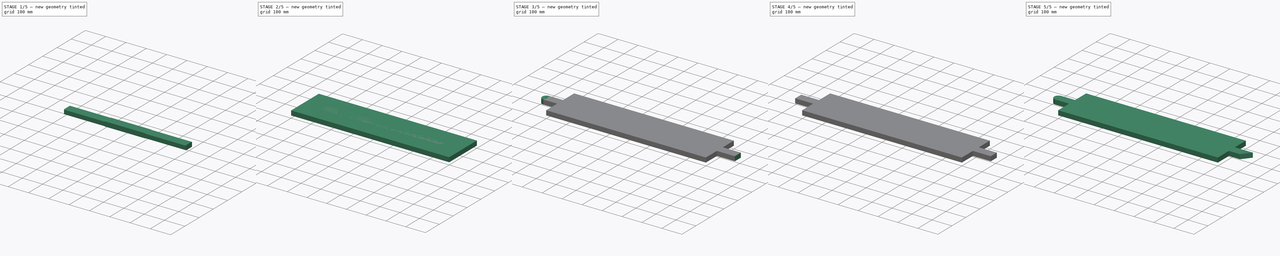
[diagram: build sequence overview — one tinted view per stage of 5, left to right]
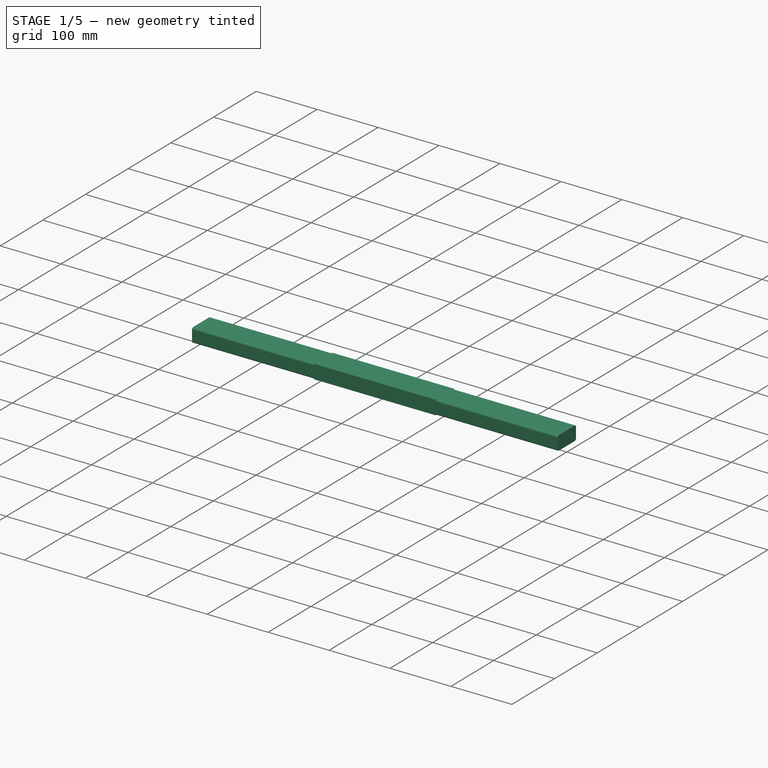
[diagram: stage 1 of 5 — iso view after this stage's code; geometry added in this stage tinted green]
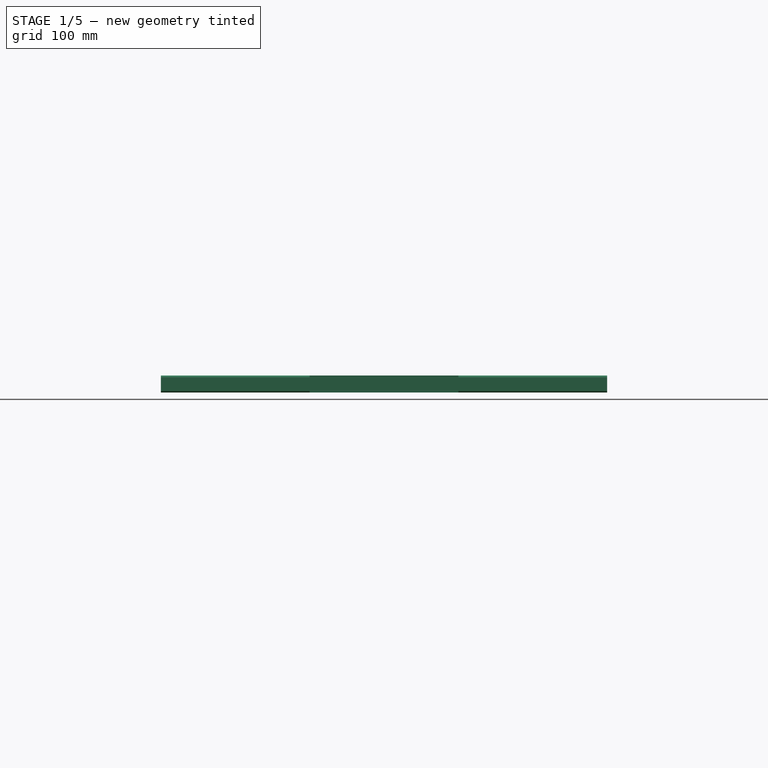
[diagram: stage 1 of 5 — front view after this stage's code; geometry added in this stage tinted green]
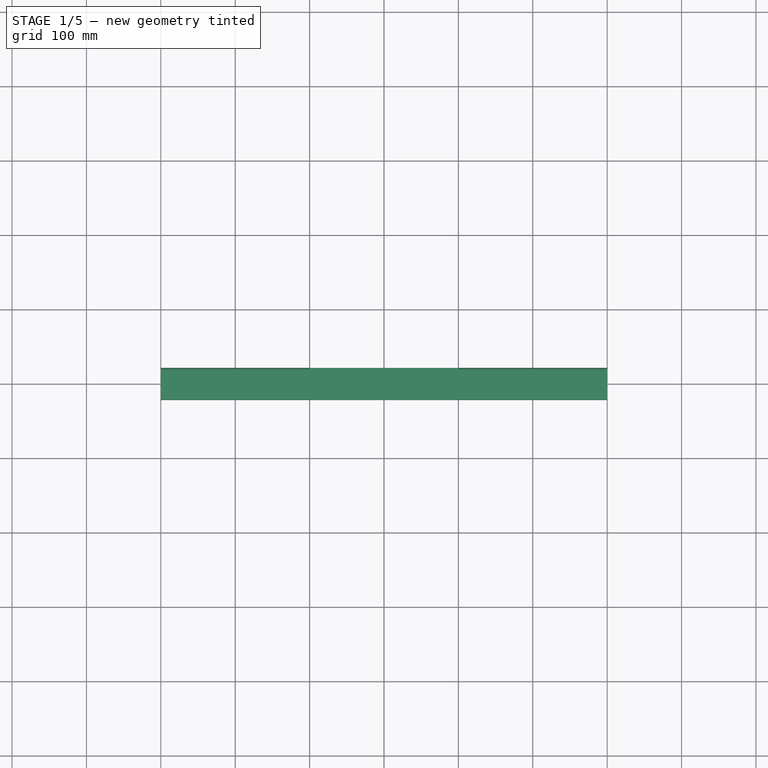
[diagram: stage 1 of 5 — top view after this stage's code; geometry added in this stage tinted green]
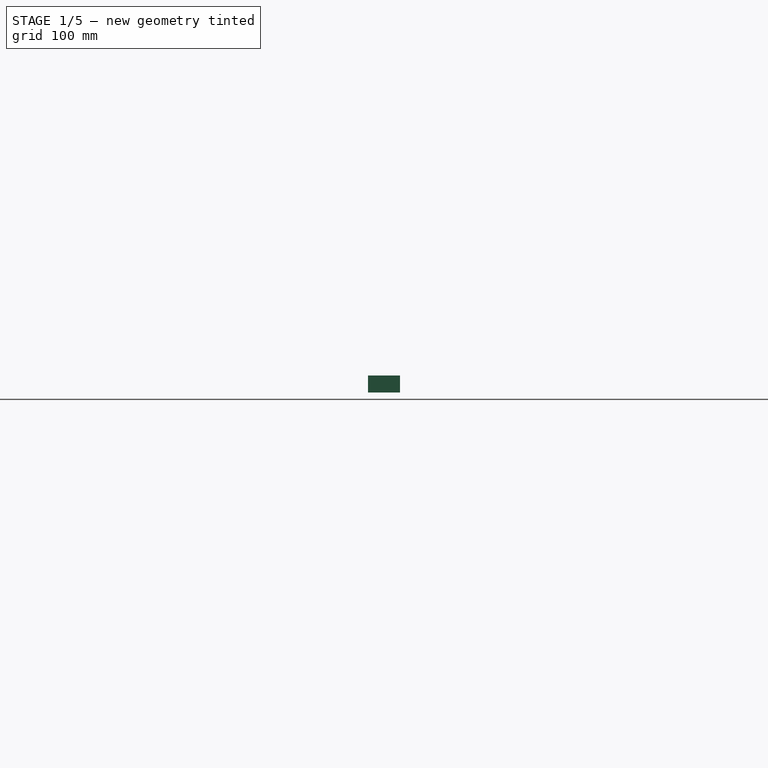
[diagram: stage 1 of 5 — right view after this stage's code; geometry added in this stage tinted green]
FCSTD DOCUMENT  (FreeCAD 0.20R29603 (Git))
Label: montagem_mesa
License: All rights reserved
LicenseURL: http://en.wikipedia.org/wiki/All_rights_reserved
objects: App::FeaturePython×144, Part::FeaturePython×76, App::Link×14, Sketcher::SketchObject×12, PartDesign::Pad×7, PartDesign::Body×7, PartDesign::Pocket×5, PartDesign::Fillet×5, App::DocumentObjectGroup×1
note: 128 computed .brp shape members not serialized (recipe doc carries the construction recipe); baked Part::Feature solids carry a one-line shape summary decoded from their .brp

FEATURE [PartDesign::Body] Body004  label="p5"
  Group = -> [Sketch010,Pad004]
  Origin = -> Origin004
  Tip = -> Pad004
FEATURE [Sketcher::SketchObject] Sketch012
  FullyConstrained = true
  MapMode = 5
  Support = -> [XY_Plane005]
  sketch-geometry (5):
    g0: LineSegment StartX=-300 StartY=21.5 StartZ=0 EndX=-300 EndY=-21.5 EndZ=0
    g1: LineSegment StartX=-300 StartY=-21.5 StartZ=0 EndX=300 EndY=-21.5 EndZ=0
    g2: LineSegment StartX=300 StartY=-21.5 StartZ=0 EndX=300 EndY=21.5 EndZ=0
    g3: LineSegment StartX=300 StartY=21.5 StartZ=0 EndX=-300 EndY=21.5 EndZ=0
    g4: GeomPoint X=0 Y=0 Z=0
  constraints (12):
    c: Coincident(g0,g1)
    c: Coincident(g1,g2)
    c: Coincident(g2,g3)
    c: Coincident(g3,g0)
    c: Horizontal(g1)
    c: Horizontal(g3)
    c: Vertical(g0)
    c: Vertical(g2)
    c: Symmetric(g1,g0,g4)
    c: Coincident(g4,g-1)
    c: DistanceX(g3,g3) = 600
    c: DistanceY(g2,g2) = 43
FEATURE [PartDesign::Pad] Pad005
  Direction = (0,0,1)
  Length = 23
  Length2 = 10
  Profile = -> Sketch012
  ReferenceAxis = -> Sketch012 [N_Axis]
  Type = 0
FEATURE [PartDesign::Fillet] Fillet004
  Base = -> Pad005 [Edge12,Edge11,Edge7,Edge6]
  BaseFeature = -> Pad005
  Radius = 3
  SupportTransform = false
  UseAllEdges = false
FEATURE [PartDesign::Body] Body005  label="p6"
  Group = -> [Sketch012,Pad005,Fillet004]
  Origin = -> Origin005
  Tip = -> Fillet004
FEATURE [Sketcher::SketchObject] Sketch013
  FullyConstrained = true
  MapMode = 5
  Support = -> [XY_Plane006]
  sketch-geometry (5):
    g0: LineSegment StartX=-100 StartY=21.5 StartZ=0 EndX=-100 EndY=-21.5 EndZ=0
    g1: LineSegment StartX=-100 StartY=-21.5 StartZ=0 EndX=100 EndY=-21.5 EndZ=0
    g2: LineSegment StartX=100 StartY=-21.5 StartZ=0 EndX=100 EndY=21.5 EndZ=0
    g3: LineSegment StartX=100 StartY=21.5 StartZ=0 EndX=-100 EndY=21.5 EndZ=0
    g4: GeomPoint X=0 Y=0 Z=0
  constraints (12):
    c: Coincident(g0,g1)
    c: Coincident(g1,g2)
    c: Coincident(g2,g3)
    c: Coincident(g3,g0)
    c: Horizontal(g1)
    c: Horizontal(g3)
    c: Vertical(g0)
    c: Vertical(g2)
    c: Symmetric(g1,g0,g4)
    c: Coincident(g4,g-1)
    c: DistanceX(g3,g3) = 200
    c: DistanceY(g2,g2) = 43
FEATURE [PartDesign::Pad] Pad006
  Direction = (0,0,1)
  Length = 23
  Length2 = 10
  Profile = -> Sketch013
  ReferenceAxis = -> Sketch013 [N_Axis]
  Type = 0
FEATURE [PartDesign::Body] Body006  label="p7"
  Group = -> [Sketch013,Pad006]
  Origin = -> Origin006
  Tip = -> Pad006
FEATURE [App::DocumentObjectGroup] Group  label="Bodys"
  Group = -> [Body,Body003,Body001,Body002,Body004,Body005,Body006]
FEATURE [Part::FeaturePython] Assembly  # WARN: FeaturePython — macro-defined, semantics opaque (R4)
  AutoRelax = true
  BuildShape = 0
  Freeze = false
  Group = -> [Constraints,Elements,Parts,Relations]
  Verbose = false
  _SolverType = 1
  _Version = 1
FEATURE [App::FeaturePython] Constraints  # WARN: FeaturePython — macro-defined, semantics opaque (R4)
  Group = -> [Constraint051,Constraint053,Constraint054,Constraint055,Constraint056,Constraint058,Constraint067,Constraint068,Constraint069,Constraint070,Constraint071,Constraint072,Constraint073,Constraint,Constraint074,Constraint075,Constraint076,Constraint077,Constraint078,Constraint109,Constraint110,Constraint111,Constraint112,Constraint094,Constraint088,Constraint093,Constraint095,Constraint096,+12 more]
  _Version = 1
FEATURE [App::FeaturePython] Elements  # WARN: FeaturePython — macro-defined, semantics opaque (R4)
  Group = -> [_Element095,_Element096,_Element100,_Element101,_Element105,_Element107,_Element109,_Element112,_Element113,_Element114,_Element115,_Element116,_Element118,_Element119,_Element125,_Element126,_Element127,_Element133,_Element134,_Element135,_Element136,_Element137,_Element138,_Element139,_Element140,_Element141,_Element142,_Element143,_Element144,_Element145,_Element146,_Element147,_Element148,+41 more]
FEATURE [App::FeaturePython] Relations  # WARN: FeaturePython — macro-defined, semantics opaque (R4)
  Constraints = -> Constraints
  Group = -> [Relation,Relation001,Relation002,Relation003,Relation004,Relation005,Relation006,Relation007,Relation008,Relation009,Relation010,Relation011,Relation012,Relation013]
FEATURE [App::FeaturePython] Relation  label="pe1.1"  # WARN: FeaturePython — macro-defined, semantics opaque (R4)
  Count = 0
  Group = -> [Constraint076,Constraint078,Constraint088,Constraint093,Constraint094,Constraint095,Constraint105,Constraint112]
  Index = 0
  Part = -> Link
FEATURE [App::FeaturePython] Relation001  label="pe1.2"  # WARN: FeaturePython — macro-defined, semantics opaque (R4)
  Count = 0
  Group = -> [Constraint077,Constraint078,Constraint096,Constraint100,Constraint101,Constraint110]
  Index = 0
  Part = -> Link001
FEATURE [App::FeaturePython] Relation002  label="trave1.1"  # WARN: FeaturePython — macro-defined, semantics opaque (R4)
  Count = 0
  Group = -> [Constraint088,Constraint093,Constraint094,Constraint095,Constraint096,Constraint099]
  Index = 0
  Part = -> Link002
FEATURE [App::FeaturePython] Relation003  label="trave1.2"  # WARN: FeaturePython — macro-defined, semantics opaque (R4)
  Count = 0
  Group = -> [Constraint099,Constraint100,Constraint101,Constraint108]
  Index = 0
  Part = -> Link003
FEATURE [App::FeaturePython] Relation004  label="pe2.1"  # WARN: FeaturePython — macro-defined, semantics opaque (R4)
  Count = 0
  Group = -> [Constraint,Constraint075,Constraint076,Constraint102,Constraint103,Constraint104,Constraint105,Constraint111,Constraint112]
  Index = 0
  Part = -> Link004
FEATURE [App::FeaturePython] Relation005  label="pe2.2"  # WARN: FeaturePython — macro-defined, semantics opaque (R4)
  Count = 0
  Group = -> [Constraint074,Constraint075,Constraint077,Constraint103,Constraint109,Constraint110]
  Index = 0
  Part = -> Link005
FEATURE [App::FeaturePython] Relation006  label="base1"  # WARN: FeaturePython — macro-defined, semantics opaque (R4)
  Count = 0
  Group = -> [Constraint051,Constraint053,Constraint054,Constraint055,Constraint056,Constraint058,Constraint,Constraint097,Constraint098,Constraint105,Constraint111]
  Index = 0
  Part = -> Link006
FEATURE [App::FeaturePython] Relation007  label="base2"  # WARN: FeaturePython — macro-defined, semantics opaque (R4)
  Count = 0
  Group = -> [Constraint053,Constraint054,Constraint074,Constraint097,Constraint109]
  Index = 0
  Part = -> Link007
FEATURE [App::FeaturePython] Relation008  label="tábua1"  # WARN: FeaturePython — macro-defined, semantics opaque (R4)
  Count = 0
  Group = -> [Constraint067,Constraint068,Constraint069,Constraint070,Constraint071,Constraint098]
  Index = 0
  Part = -> Link008
FEATURE [App::FeaturePython] Relation009  label="tábua2"  # WARN: FeaturePython — macro-defined, semantics opaque (R4)
  Count = 0
  Group = -> [Constraint067,Constraint070,Constraint071,Constraint072,Constraint073]
  Index = 0
  Part = -> Link009
FEATURE [App::FeaturePython] Relation010  label="tábua3"  # WARN: FeaturePython — macro-defined, semantics opaque (R4)
  Count = 0
  Group = -> [Constraint067,Constraint072,Constraint073,Constraint097]
  Index = 0
  Part = -> Link010
FEATURE [App::FeaturePython] Relation011  label="tábua4"  # WARN: FeaturePython — macro-defined, semantics opaque (R4)
  Count = 0
  Group = -> [Constraint055,Constraint056,Constraint058,Constraint067,Constraint068,Constraint069,Constraint106,Constraint107]
  Index = 0
  Part = -> Link011
FEATURE [App::FeaturePython] Relation012  label="trave2"  # WARN: FeaturePython — macro-defined, semantics opaque (R4)
  Count = 0
  Group = -> [Constraint102,Constraint103,Constraint104]
  Index = 0
  Part = -> Link012
FEATURE [App::FeaturePython] Relation013  label="suporte"  # WARN: FeaturePython — macro-defined, semantics opaque (R4)
  Count = 0
  Group = -> [Constraint106,Constraint107,Constraint108]
  Index = 0
  Part = -> Link013
FEATURE [Part::FeaturePython] _Element095  label="5"  # link proxy (typed FeaturePython)
  Detach = false
  LinkTransform = true
  LinkedObject = -> Link011 [Pad004.Face6]
  _Parent = -> Elements
FEATURE [Part::FeaturePython] _Element096  label="55"  # link proxy (typed FeaturePython)
  Detach = false
  LinkTransform = true
  LinkedObject = -> Link010 [Pad004.Face6]
  _Parent = -> Elements
FEATURE [Part::FeaturePython] _Element100  label="40"  # link proxy (typed FeaturePython)
  Detach = false
  LinkTransform = true
  LinkedObject = -> Link006 [Fillet002.Face2]
  _Parent = -> Elements
FEATURE [Part::FeaturePython] _Element101  label="74"  # link proxy (typed FeaturePython)
  Detach = false
  LinkTransform = true
  LinkedObject = -> Link013 [Pad006.Face6]
  _Parent = -> Elements
FEATURE [Part::FeaturePython] _Element105  label="42"  # link proxy (typed FeaturePython)
  Detach = false
  LinkTransform = true
  LinkedObject = -> Link004 [Pocket006.Face2]
  _Parent = -> Elements
FEATURE [Part::FeaturePython] _Element107  label="62"  # link proxy (typed FeaturePython)
  Detach = false
  LinkTransform = true
  LinkedObject = -> Link012 [Fillet004.Face5]
  _Parent = -> Elements
FEATURE [App::FeaturePython] Constraint051  label="Locked001"  # WARN: FeaturePython — macro-defined, semantics opaque (R4)
  Disabled = false
  Group = -> [ElementLink102]
  _ConstraintType = 0
  _Parent = -> Constraints
FEATURE [App::FeaturePython] ElementLink102  label="1"  # link proxy (typed FeaturePython)
  LinkTransform = true
  LinkedObject = -> _Element109
  _Parent = -> Constraint051
FEATURE [Part::FeaturePython] _Element109  label="1"  # link proxy (typed FeaturePython)
  Detach = false
  LinkTransform = true
  LinkedObject = -> Link006 [Fillet002.Face4]
  _Parent = -> Elements
FEATURE [App::FeaturePython] Constraint053  label="PlaneAlignment007"  # WARN: FeaturePython — macro-defined, semantics opaque (R4)
  Angle = 0
  AnglePitch = 0
  AngleRoll = 0
  Cascade = false
  Disabled = false
  Group = -> [ElementLink105,ElementLink106]
  LockAngle = false
  _ConstraintType = 37
  _Parent = -> Constraints
FEATURE [App::FeaturePython] ElementLink105  label="2"  # link proxy (typed FeaturePython)
  LinkTransform = true
  LinkedObject = -> _Element112
  _Parent = -> Constraint053
FEATURE [Part::FeaturePython] _Element112  label="2"  # link proxy (typed FeaturePython)
  Detach = false
  LinkTransform = true
  LinkedObject = -> Link007 [Fillet002.Face4]
  _Parent = -> Elements
FEATURE [App::FeaturePython] ElementLink106  label="1"  # link proxy (typed FeaturePython)
  LinkTransform = true
  LinkedObject = -> _Element109
  _Parent = -> Constraint053
FEATURE [App::FeaturePython] Constraint054  label="AxialAlignment007"  # WARN: FeaturePython — macro-defined, semantics opaque (R4)
  Angle = 0
  AnglePitch = 0
  AngleRoll = 0
  Disabled = false
  Group = -> [ElementLink107,ElementLink108]
  LockAngle = false
  Multiply = false
  _ConstraintType = 36
  _Parent = -> Constraints
FEATURE [App::FeaturePython] ElementLink107  label="3"  # link proxy (typed FeaturePython)
  LinkTransform = true
  LinkedObject = -> _Element113
  _Parent = -> Constraint054
FEATURE [Part::FeaturePython] _Element113  label="3"  # link proxy (typed FeaturePython)
  Detach = false
  LinkTransform = true
  LinkedObject = -> Link007 [Fillet002.Face9]
  _Parent = -> Elements
FEATURE [App::FeaturePython] ElementLink108  label="4"  # link proxy (typed FeaturePython)
  LinkTransform = true
  LinkedObject = -> _Element114
  _Parent = -> Constraint054
FEATURE [Part::FeaturePython] _Element114  label="4"  # link proxy (typed FeaturePython)
  Detach = false
  LinkTransform = true
  LinkedObject = -> Link006 [Fillet002.Face9]
  _Parent = -> Elements
FEATURE [Part::FeaturePython] _Element115  label="9"  # link proxy (typed FeaturePython)
  Detach = false
  LinkTransform = true
  LinkedObject = -> Link011 [Pad004.Face5]
  _Parent = -> Elements
FEATURE [App::FeaturePython] Constraint055  label="PlaneAlignment008"  # WARN: FeaturePython — macro-defined, semantics opaque (R4)
  Angle = 0
  AnglePitch = 0
  AngleRoll = 0
  Cascade = false
  Disabled = false
  Group = -> [ElementLink109,ElementLink110]
  LockAngle = false
  _ConstraintType = 37
  _Parent = -> Constraints
FEATURE [App::FeaturePython] ElementLink109  label="5"  # link proxy (typed FeaturePython)
  LinkTransform = true
  LinkedObject = -> _Element095
  _Parent = -> Constraint055
FEATURE [App::FeaturePython] ElementLink110  label="1"  # link proxy (typed FeaturePython)
  LinkTransform = true
  LinkedObject = -> _Element109
  _Parent = -> Constraint055
FEATURE [App::FeaturePython] Constraint056  label="PointInPlane012"  # WARN: FeaturePython — macro-defined, semantics opaque (R4)
  Disabled = false
  Group = -> [ElementLink111,ElementLink112]
  _ConstraintType = 3
  _Parent = -> Constraints
FEATURE [App::FeaturePython] ElementLink111  label="6"  # link proxy (typed FeaturePython)
  LinkTransform = true
  LinkedObject = -> _Element116
  _Parent = -> Constraint056
FEATURE [Part::FeaturePython] _Element116  label="6"  # link proxy (typed FeaturePython)
  Detach = false
  LinkTransform = true
  LinkedObject = -> Link006 [Fillet002.Vertex11]
  _Parent = -> Elements
FEATURE [App::FeaturePython] ElementLink112  label="5"  # link proxy (typed FeaturePython)
  LinkTransform = true
  LinkedObject = -> _Element095
  _Parent = -> Constraint056
FEATURE [App::FeaturePython] Constraint058  label="Perpendicular001"  # WARN: FeaturePython — macro-defined, semantics opaque (R4)
  Disabled = false
  Group = -> [ElementLink115,ElementLink116]
  _ConstraintType = 28
  _Parent = -> Constraints
FEATURE [App::FeaturePython] ElementLink115  label="7"  # link proxy (typed FeaturePython)
  LinkTransform = true
  LinkedObject = -> _Element118
  _Parent = -> Constraint058
FEATURE [Part::FeaturePython] _Element118  label="7"  # link proxy (typed FeaturePython)
  Detach = false
  LinkTransform = true
  LinkedObject = -> Link006 [Fillet002.Edge6]
  _Parent = -> Elements
FEATURE [App::FeaturePython] ElementLink116  label="8"  # link proxy (typed FeaturePython)
  LinkTransform = true
  LinkedObject = -> _Element119
  _Parent = -> Constraint058
FEATURE [Part::FeaturePython] _Element119  label="8"  # link proxy (typed FeaturePython)
  Detach = false
  LinkTransform = true
  LinkedObject = -> Link011 [Pad004.Edge7]
  _Parent = -> Elements
FEATURE [Part::FeaturePython] _Element125  label="12"  # link proxy (typed FeaturePython)
  Detach = false
  LinkTransform = true
  LinkedObject = -> Link010 [Pad004.Face5]
  _Parent = -> Elements
FEATURE [Part::FeaturePython] _Element126  label="11"  # link proxy (typed FeaturePython)
  Detach = false
  LinkTransform = true
  LinkedObject = -> Link009 [Pad004.Face5]
  _Parent = -> Elements
FEATURE [Part::FeaturePython] _Element127  label="10"  # link proxy (typed FeaturePython)
  Detach = false
  LinkTransform = true
  LinkedObject = -> Link008 [Pad004.Face5]
  _Parent = -> Elements
FEATURE [App::FeaturePython] Constraint067  label="PlaneAlignment009"  # WARN: FeaturePython — macro-defined, semantics opaque (R4)
  Angle = 0
  AnglePitch = 0
  AngleRoll = 0
  Cascade = false
  Disabled = false
  Group = -> [ElementLink135,ElementLink136,ElementLink137,ElementLink138]
  LockAngle = false
  _ConstraintType = 37
  _Parent = -> Constraints
FEATURE [App::FeaturePython] ElementLink135  label="9"  # link proxy (typed FeaturePython)
  LinkTransform = true
  LinkedObject = -> _Element115
  _Parent = -> Constraint067
FEATURE [App::FeaturePython] ElementLink136  label="10"  # link proxy (typed FeaturePython)
  LinkTransform = true
  LinkedObject = -> _Element127
  _Parent = -> Constraint067
FEATURE [App::FeaturePython] ElementLink137  label="11"  # link proxy (typed FeaturePython)
  LinkTransform = true
  LinkedObject = -> _Element126
  _Parent = -> Constraint067
FEATURE [App::FeaturePython] ElementLink138  label="12"  # link proxy (typed FeaturePython)
  LinkTransform = true
  LinkedObject = -> _Element125
  _Parent = -> Constraint067
FEATURE [App::FeaturePython] Constraint068  label="PointsCoincident006"  # WARN: FeaturePython — macro-defined, semantics opaque (R4)
  Disabled = false
  Group = -> [ElementLink139,ElementLink140]
  _ConstraintType = 1
  _Parent = -> Constraints
FEATURE [App::FeaturePython] ElementLink139  label="13"  # link proxy (typed FeaturePython)
  LinkTransform = true
  LinkedObject = -> _Element133
  _Parent = -> Constraint068
FEATURE [Part::FeaturePython] _Element133  label="13"  # link proxy (typed FeaturePython)
  Detach = false
  LinkTransform = true
  LinkedObject = -> Link008 [Pad004.Vertex1]
  _Parent = -> Elements
FEATURE [App::FeaturePython] ElementLink140  label="14"  # link proxy (typed FeaturePython)
  LinkTransform = true
  LinkedObject = -> _Element134
  _Parent = -> Constraint068
FEATURE [Part::FeaturePython] _Element134  label="14"  # link proxy (typed FeaturePython)
  Detach = false
  LinkTransform = true
  LinkedObject = -> Link011 [Pad004.Vertex3]
  _Parent = -> Elements
FEATURE [App::FeaturePython] Constraint069  label="PointsCoincident007"  # WARN: FeaturePython — macro-defined, semantics opaque (R4)
  Disabled = false
  Group = -> [ElementLink141,ElementLink142]
  _ConstraintType = 1
  _Parent = -> Constraints
FEATURE [App::FeaturePython] ElementLink141  label="15"  # link proxy (typed FeaturePython)
  LinkTransform = true
  LinkedObject = -> _Element135
  _Parent = -> Constraint069
FEATURE [Part::FeaturePython] _Element135  label="15"  # link proxy (typed FeaturePython)
  Detach = false
  LinkTransform = true
  LinkedObject = -> Link011 [Pad004.Vertex5]
  _Parent = -> Elements
FEATURE [App::FeaturePython] ElementLink142  label="16"  # link proxy (typed FeaturePython)
  LinkTransform = true
  LinkedObject = -> _Element136
  _Parent = -> Constraint069
FEATURE [Part::FeaturePython] _Element136  label="16"  # link proxy (typed FeaturePython)
  Detach = false
  LinkTransform = true
  LinkedObject = -> Link008 [Pad004.Vertex7]
  _Parent = -> Elements
FEATURE [App::FeaturePython] Constraint070  label="PointsCoincident008"  # WARN: FeaturePython — macro-defined, semantics opaque (R4)
  Disabled = false
  Group = -> [ElementLink143,ElementLink144]
  _ConstraintType = 1
  _Parent = -> Constraints
FEATURE [App::FeaturePython] ElementLink143  label="17"  # link proxy (typed FeaturePython)
  LinkTransform = true
  LinkedObject = -> _Element137
  _Parent = -> Constraint070
FEATURE [Part::FeaturePython] _Element137  label="17"  # link proxy (typed FeaturePython)
  Detach = false
  LinkTransform = true
  LinkedObject = -> Link008 [Pad004.Vertex3]
  _Parent = -> Elements
FEATURE [App::FeaturePython] ElementLink144  label="18"  # link proxy (typed FeaturePython)
  LinkTransform = true
  LinkedObject = -> _Element138
  _Parent = -> Constraint070
FEATURE [Part::FeaturePython] _Element138  label="18"  # link proxy (typed FeaturePython)
  Detach = false
  LinkTransform = true
  LinkedObject = -> Link009 [Pad004.Vertex1]
  _Parent = -> Elements
FEATURE [App::FeaturePython] Constraint071  label="PointsCoincident009"  # WARN: FeaturePython — macro-defined, semantics opaque (R4)
  Disabled = false
  Group = -> [ElementLink145,ElementLink146]
  _ConstraintType = 1
  _Parent = -> Constraints
FEATURE [App::FeaturePython] ElementLink145  label="19"  # link proxy (typed FeaturePython)
  LinkTransform = true
  LinkedObject = -> _Element139
  _Parent = -> Constraint071
FEATURE [Part::FeaturePython] _Element139  label="19"  # link proxy (typed FeaturePython)
  Detach = false
  LinkTransform = true
  LinkedObject = -> Link009 [Pad004.Vertex7]
  _Parent = -> Elements
FEATURE [App::FeaturePython] ElementLink146  label="20"  # link proxy (typed FeaturePython)
  LinkTransform = true
  LinkedObject = -> _Element140
  _Parent = -> Constraint071
FEATURE [Part::FeaturePython] _Element140  label="20"  # link proxy (typed FeaturePython)
  Detach = false
  LinkTransform = true
  LinkedObject = -> Link008 [Pad004.Vertex5]
  _Parent = -> Elements
FEATURE [App::FeaturePython] Constraint072  label="PointsCoincident010"  # WARN: FeaturePython — macro-defined, semantics opaque (R4)
  Disabled = false
  Group = -> [ElementLink147,ElementLink148]
  _ConstraintType = 1
  _Parent = -> Constraints
FEATURE [App::FeaturePython] ElementLink147  label="21"  # link proxy (typed FeaturePython)
  LinkTransform = true
  LinkedObject = -> _Element141
  _Parent = -> Constraint072
FEATURE [Part::FeaturePython] _Element141  label="21"  # link proxy (typed FeaturePython)
  Detach = false
  LinkTransform = true
  LinkedObject = -> Link010 [Pad004.Vertex1]
  _Parent = -> Elements
FEATURE [App::FeaturePython] ElementLink148  label="22"  # link proxy (typed FeaturePython)
  LinkTransform = true
  LinkedObject = -> _Element142
  _Parent = -> Constraint072
FEATURE [Part::FeaturePython] _Element142  label="22"  # link proxy (typed FeaturePython)
  Detach = false
  LinkTransform = true
  LinkedObject = -> Link009 [Pad004.Vertex3]
  _Parent = -> Elements
FEATURE [App::FeaturePython] Constraint073  label="PointsCoincident011"  # WARN: FeaturePython — macro-defined, semantics opaque (R4)
  Disabled = false
  Group = -> [ElementLink149,ElementLink150]
  _ConstraintType = 1
  _Parent = -> Constraints
FEATURE [App::FeaturePython] ElementLink149  label="23"  # link proxy (typed FeaturePython)
  LinkTransform = true
  LinkedObject = -> _Element143
  _Parent = -> Constraint073
FEATURE [Part::FeaturePython] _Element143  label="23"  # link proxy (typed FeaturePython)
  Detach = false
  LinkTransform = true
  LinkedObject = -> Link009 [Pad004.Vertex5]
  _Parent = -> Elements
FEATURE [App::FeaturePython] ElementLink150  label="24"  # link proxy (typed FeaturePython)
  LinkTransform = true
  LinkedObject = -> _Element144
  _Parent = -> Constraint073
FEATURE [Part::FeaturePython] _Element144  label="24"  # link proxy (typed FeaturePython)
  Detach = false
  LinkTransform = true
  LinkedObject = -> Link010 [Pad004.Vertex7]
  _Parent = -> Elements
FEATURE [App::FeaturePython] Constraint  label="AxialAlignment"  # WARN: FeaturePython — macro-defined, semantics opaque (R4)
  Angle = 0
  AnglePitch = 0
  AngleRoll = 0
  Disabled = false
  Group = -> [ElementLink,ElementLink151]
  LockAngle = false
  Multiply = false
  _ConstraintType = 36
  _Parent = -> Constraints
FEATURE [App::FeaturePython] ElementLink  label="25"  # link proxy (typed FeaturePython)
  LinkTransform = true
  LinkedObject = -> _Element145
  _Parent = -> Constraint
FEATURE [Part::FeaturePython] _Element145  label="25"  # link proxy (typed FeaturePython)
  Detach = false
  LinkTransform = true
  LinkedObject = -> Link004 [Pocket006.Face9]
  _Parent = -> Elements
FEATURE [App::FeaturePython] ElementLink151  label="4"  # link proxy (typed FeaturePython)
  LinkTransform = true
  LinkedObject = -> _Element114
  _Parent = -> Constraint
FEATURE [App::FeaturePython] Constraint074  label="AxialAlignment008"  # WARN: FeaturePython — macro-defined, semantics opaque (R4)
  Angle = 0
  AnglePitch = 0
  AngleRoll = 0
  Disabled = false
  Group = -> [ElementLink152,ElementLink153]
  LockAngle = false
  Multiply = false
  _ConstraintType = 36
  _Parent = -> Constraints
FEATURE [App::FeaturePython] ElementLink152  label="26"  # link proxy (typed FeaturePython)
  LinkTransform = true
  LinkedObject = -> _Element146
  _Parent = -> Constraint074
FEATURE [Part::FeaturePython] _Element146  label="26"  # link proxy (typed FeaturePython)
  Detach = false
  LinkTransform = true
  LinkedObject = -> Link005 [Pocket006.Face9]
  _Parent = -> Elements
FEATURE [App::FeaturePython] ElementLink153  label="3"  # link proxy (typed FeaturePython)
  LinkTransform = true
  LinkedObject = -> _Element113
  _Parent = -> Constraint074
FEATURE [App::FeaturePython] Constraint075  label="MultiParallel"  # WARN: FeaturePython — macro-defined, semantics opaque (R4)
  Angle = 0
  AnglePitch = 0
  AngleRoll = 0
  Disabled = false
  Group = -> [ElementLink154,ElementLink155]
  LockAngle = false
  _ConstraintType = 291
  _Parent = -> Constraints
FEATURE [App::FeaturePython] ElementLink154  label="27"  # link proxy (typed FeaturePython)
  LinkTransform = true
  LinkedObject = -> _Element147
  _Parent = -> Constraint075
FEATURE [Part::FeaturePython] _Element147  label="27"  # link proxy (typed FeaturePython)
  Detach = false
  LinkTransform = true
  LinkedObject = -> Link004 [Pocket006.Edge16]
  _Parent = -> Elements
FEATURE [App::FeaturePython] ElementLink155  label="28"  # link proxy (typed FeaturePython)
  LinkTransform = true
  LinkedObject = -> _Element148
  _Parent = -> Constraint075
FEATURE [Part::FeaturePython] _Element148  label="28"  # link proxy (typed FeaturePython)
  Detach = false
  LinkTransform = true
  LinkedObject = -> Link005 [Pocket006.Edge16]
  _Parent = -> Elements
FEATURE [App::FeaturePython] Constraint076  label="AxialAlignment009"  # WARN: FeaturePython — macro-defined, semantics opaque (R4)
  Angle = 0
  AnglePitch = 0
  AngleRoll = 0
  Disabled = false
  Group = -> [ElementLink156,ElementLink157]
  LockAngle = false
  Multiply = false
  _ConstraintType = 36
  _Parent = -> Constraints
FEATURE [App::FeaturePython] ElementLink156  label="29"  # link proxy (typed FeaturePython)
  LinkTransform = true
  LinkedObject = -> _Element149
  _Parent = -> Constraint076
FEATURE [Part::FeaturePython] _Element149  label="29"  # link proxy (typed FeaturePython)
  Detach = false
  LinkTransform = true
  LinkedObject = -> Link [Pocket007.Face9]
  _Parent = -> Elements
FEATURE [App::FeaturePython] ElementLink157  label="30"  # link proxy (typed FeaturePython)
  LinkTransform = true
  LinkedObject = -> _Element150
  _Parent = -> Constraint076
FEATURE [Part::FeaturePython] _Element150  label="30"  # link proxy (typed FeaturePython)
  Detach = false
  LinkTransform = true
  LinkedObject = -> Link004 [Pocket006.Face10]
  _Parent = -> Elements
FEATURE [Part::FeaturePython] _Element151  label="31"  # link proxy (typed FeaturePython)
  Detach = false
  LinkTransform = true
  LinkedObject = -> Link001 [Pocket007.Face9]
  _Parent = -> Elements
FEATURE [Part::FeaturePython] _Element152  label="32"  # link proxy (typed FeaturePython)
  Detach = false
  LinkTransform = true
  LinkedObject = -> Link005 [Pocket006.Face10]
  _Parent = -> Elements
FEATURE [App::FeaturePython] Constraint077  label="AxialAlignment010"  # WARN: FeaturePython — macro-defined, semantics opaque (R4)
  Angle = 0
  AnglePitch = 0
  AngleRoll = 0
  Disabled = false
  Group = -> [ElementLink158,ElementLink159]
  LockAngle = false
  Multiply = false
  _ConstraintType = 36
  _Parent = -> Constraints
FEATURE [App::FeaturePython] ElementLink158  label="31"  # link proxy (typed FeaturePython)
  LinkTransform = true
  LinkedObject = -> _Element151
  _Parent = -> Constraint077
FEATURE [App::FeaturePython] ElementLink159  label="32"  # link proxy (typed FeaturePython)
  LinkTransform = true
  LinkedObject = -> _Element152
  _Parent = -> Constraint077
FEATURE [App::FeaturePython] Constraint078  label="MultiParallel001"  # WARN: FeaturePython — macro-defined, semantics opaque (R4)
  Angle = 0
  AnglePitch = 0
  AngleRoll = 0
  Disabled = false
  Group = -> [ElementLink160,ElementLink161]
  LockAngle = false
  _ConstraintType = 291
  _Parent = -> Constraints
FEATURE [App::FeaturePython] ElementLink160  label="33"  # link proxy (typed FeaturePython)
  LinkTransform = true
  LinkedObject = -> _Element153
  _Parent = -> Constraint078
FEATURE [Part::FeaturePython] _Element153  label="33"  # link proxy (typed FeaturePython)
  Detach = false
  LinkTransform = true
  LinkedObject = -> Link001 [Pocket007.Edge8]
  _Parent = -> Elements
FEATURE [App::FeaturePython] ElementLink161  label="34"  # link proxy (typed FeaturePython)
  LinkTransform = true
  LinkedObject = -> _Element154
  _Parent = -> Constraint078
FEATURE [Part::FeaturePython] _Element154  label="34"  # link proxy (typed FeaturePython)
  Detach = false
  LinkTransform = true
  LinkedObject = -> Link [Pocket007.Edge16]
  _Parent = -> Elements
FEATURE [Part::FeaturePython] _Element155  label="69"  # link proxy (typed FeaturePython)
  Detach = false
  LinkTransform = true
  LinkedObject = -> Link006 [Fillet002.Edge15]
  _Parent = -> Elements
FEATURE [Part::FeaturePython] _Element158  label="35"  # link proxy (typed FeaturePython)
  Detach = false
  LinkTransform = true
  LinkedObject = -> Link005 [Pocket006.Vertex9]
  _Parent = -> Elements
FEATURE [Part::FeaturePython] _Element159  label="36"  # link proxy (typed FeaturePython)
  Detach = false
  LinkTransform = true
  LinkedObject = -> Link007 [Fillet002.Face5]
  _Parent = -> Elements
FEATURE [Part::FeaturePython] _Element160  label="37"  # link proxy (typed FeaturePython)
  Detach = false
  LinkTransform = true
  LinkedObject = -> Link001 [Pocket007.Vertex14]
  _Parent = -> Elements
FEATURE [Part::FeaturePython] _Element161  label="38"  # link proxy (typed FeaturePython)
  Detach = false
  LinkTransform = true
  LinkedObject = -> Link005 [Pocket006.Face5]
  _Parent = -> Elements
FEATURE [Part::FeaturePython] _Element162  label="39"  # link proxy (typed FeaturePython)
  Detach = false
  LinkTransform = true
  LinkedObject = -> Link004 [Pocket006.Vertex15]
  _Parent = -> Elements
FEATURE [Part::FeaturePython] _Element163  label="41"  # link proxy (typed FeaturePython)
  Detach = false
  LinkTransform = true
  LinkedObject = -> Link [Pocket007.Vertex9]
  _Parent = -> Elements
FEATURE [Part::FeaturePython] _Element165  label="45"  # link proxy (typed FeaturePython)
  Detach = false
  LinkTransform = true
  LinkedObject = -> Link [Pocket007.Face4]
  _Parent = -> Elements
FEATURE [Part::FeaturePython] _Element166  label="48"  # link proxy (typed FeaturePython)
  Detach = false
  LinkTransform = true
  LinkedObject = -> Link002 [Fillet003.Face10]
  _Parent = -> Elements
FEATURE [Part::FeaturePython] _Element167  label="43"  # link proxy (typed FeaturePython)
  Detach = false
  LinkTransform = true
  LinkedObject = -> Link002 [Fillet003.Edge10]
  _Parent = -> Elements
FEATURE [App::FeaturePython] Constraint088  label="LineHorizontal"  # WARN: FeaturePython — macro-defined, semantics opaque (R4)
  Disabled = false
  Group = -> [ElementLink180,ElementLink181]
  _ConstraintType = 23
  _Parent = -> Constraints
FEATURE [App::FeaturePython] ElementLink180  label="44"  # link proxy (typed FeaturePython)
  LinkTransform = true
  LinkedObject = -> _Element168
  _Parent = -> Constraint088
FEATURE [Part::FeaturePython] _Element168  label="44"  # link proxy (typed FeaturePython)
  Detach = false
  LinkTransform = true
  LinkedObject = -> Link002 [Fillet003.Edge17]
  _Parent = -> Elements
FEATURE [App::FeaturePython] ElementLink181  label="45"  # link proxy (typed FeaturePython)
  LinkTransform = true
  LinkedObject = -> _Element165
  _Parent = -> Constraint088
FEATURE [App::FeaturePython] Constraint093  label="SymmetricVertical"  # WARN: FeaturePython — macro-defined, semantics opaque (R4)
  Disabled = false
  Group = -> [ElementLink190,ElementLink191,ElementLink192]
  _ConstraintType = 18
  _Parent = -> Constraints
FEATURE [App::FeaturePython] ElementLink190  label="46"  # link proxy (typed FeaturePython)
  LinkTransform = true
  LinkedObject = -> _Element176
  _Parent = -> Constraint093
FEATURE [Part::FeaturePython] _Element176  label="46"  # link proxy (typed FeaturePython)
  Detach = false
  LinkTransform = true
  LinkedObject = -> Link002 [Fillet003.Vertex15]
  _Parent = -> Elements
FEATURE [App::FeaturePython] ElementLink191  label="47"  # link proxy (typed FeaturePython)
  LinkTransform = true
  LinkedObject = -> _Element177
  _Parent = -> Constraint093
FEATURE [Part::FeaturePython] _Element177  label="47"  # link proxy (typed FeaturePython)
  Detach = false
  LinkTransform = true
  LinkedObject = -> Link002 [Fillet003.Vertex16]
  _Parent = -> Elements
FEATURE [App::FeaturePython] ElementLink192  label="45"  # link proxy (typed FeaturePython)
  LinkTransform = true
  LinkedObject = -> _Element165
  _Parent = -> Constraint093
FEATURE [App::FeaturePython] Constraint094  label="PlaneAlignment"  # WARN: FeaturePython — macro-defined, semantics opaque (R4)
  Angle = 0
  AnglePitch = 0
  AngleRoll = 0
  Cascade = false
  Disabled = false
  Group = -> [ElementLink193,ElementLink194]
  LockAngle = false
  _ConstraintType = 37
  _Parent = -> Constraints
FEATURE [App::FeaturePython] ElementLink193  label="48"  # link proxy (typed FeaturePython)
  LinkTransform = true
  LinkedObject = -> _Element166
  _Parent = -> Constraint094
FEATURE [App::FeaturePython] ElementLink194  label="45"  # link proxy (typed FeaturePython)
  LinkTransform = true
  LinkedObject = -> _Element165
  _Parent = -> Constraint094
FEATURE [App::FeaturePython] Constraint095  label="PointsPlaneDistance"  # WARN: FeaturePython — macro-defined, semantics opaque (R4)
  Disabled = false
  Distance = -200
  Group = -> [ElementLink195,ElementLink196]
  _ConstraintType = 7
  _Parent = -> Constraints
FEATURE [App::FeaturePython] ElementLink195  label="49"  # link proxy (typed FeaturePython)
  LinkTransform = true
  LinkedObject = -> _Element178
  _Parent = -> Constraint095
FEATURE [Part::FeaturePython] _Element178  label="49"  # link proxy (typed FeaturePython)
  Detach = false
  LinkTransform = true
  LinkedObject = -> Link [Pocket007.Vertex10]
  _Parent = -> Elements
FEATURE [App::FeaturePython] ElementLink196  label="50"  # link proxy (typed FeaturePython)
  LinkTransform = true
  LinkedObject = -> _Element179
  _Parent = -> Constraint095
FEATURE [Part::FeaturePython] _Element179  label="50"  # link proxy (typed FeaturePython)
  Detach = false
  LinkTransform = true
  LinkedObject = -> Link002 [Fillet003.Face2]
  _Parent = -> Elements
FEATURE [App::FeaturePython] Constraint096  label="PlaneAlignment010"  # WARN: FeaturePython — macro-defined, semantics opaque (R4)
  Angle = 0
  AnglePitch = 0
  AngleRoll = 0
  Cascade = false
  Disabled = false
  Group = -> [ElementLink197,ElementLink198]
  LockAngle = false
  _ConstraintType = 37
  _Parent = -> Constraints
FEATURE [App::FeaturePython] ElementLink197  label="51"  # link proxy (typed FeaturePython)
  LinkTransform = true
  LinkedObject = -> _Element180
  _Parent = -> Constraint096
FEATURE [Part::FeaturePython] _Element180  label="51"  # link proxy (typed FeaturePython)
  Detach = false
  LinkTransform = true
  LinkedObject = -> Link002 [Fillet003.Face1]
  _Parent = -> Elements
FEATURE [App::FeaturePython] ElementLink198  label="52"  # link proxy (typed FeaturePython)
  LinkTransform = true
  LinkedObject = -> _Element181
  _Parent = -> Constraint096
FEATURE [Part::FeaturePython] _Element181  label="52"  # link proxy (typed FeaturePython)
  Detach = false
  LinkTransform = true
  LinkedObject = -> Link001 [Pocket007.Face2]
  _Parent = -> Elements
FEATURE [App::FeaturePython] Constraint097  label="SymmetricHorizontal"  # WARN: FeaturePython — macro-defined, semantics opaque (R4)
  Disabled = false
  Group = -> [ElementLink199,ElementLink200,ElementLink201]
  _ConstraintType = 17
  _Parent = -> Constraints
FEATURE [App::FeaturePython] ElementLink199  label="53"  # link proxy (typed FeaturePython)
  LinkTransform = true
  LinkedObject = -> _Element182
  _Parent = -> Constraint097
FEATURE [Part::FeaturePython] _Element182  label="53"  # link proxy (typed FeaturePython)
  Detach = false
  LinkTransform = true
  LinkedObject = -> Link007 [Fillet002.Vertex2]
  _Parent = -> Elements
FEATURE [App::FeaturePython] ElementLink200  label="54"  # link proxy (typed FeaturePython)
  LinkTransform = true
  LinkedObject = -> _Element183
  _Parent = -> Constraint097
FEATURE [Part::FeaturePython] _Element183  label="54"  # link proxy (typed FeaturePython)
  Detach = false
  LinkTransform = true
  LinkedObject = -> Link006 [Fillet002.Vertex4]
  _Parent = -> Elements
FEATURE [App::FeaturePython] ElementLink201  label="55"  # link proxy (typed FeaturePython)
  LinkTransform = true
  LinkedObject = -> _Element096
  _Parent = -> Constraint097
FEATURE [App::FeaturePython] Constraint098  label="PointsSymmetric"  # WARN: FeaturePython — macro-defined, semantics opaque (R4)
  Disabled = false
  Group = -> [ElementLink202,ElementLink203,ElementLink204]
  _ConstraintType = 16
  _Parent = -> Constraints
FEATURE [App::FeaturePython] ElementLink202  label="54"  # link proxy (typed FeaturePython)
  LinkTransform = true
  LinkedObject = -> _Element183
  _Parent = -> Constraint098
FEATURE [App::FeaturePython] ElementLink203  label="6"  # link proxy (typed FeaturePython)
  LinkTransform = true
  LinkedObject = -> _Element116
  _Parent = -> Constraint098
FEATURE [App::FeaturePython] ElementLink204  label="56"  # link proxy (typed FeaturePython)
  LinkTransform = true
  LinkedObject = -> _Element184
  _Parent = -> Constraint098
FEATURE [Part::FeaturePython] _Element184  label="56"  # link proxy (typed FeaturePython)
  Detach = false
  LinkTransform = true
  LinkedObject = -> Link008 [Pad004.Face2]
  _Parent = -> Elements
FEATURE [App::FeaturePython] Constraint099  label="PlaneAlignment011"  # WARN: FeaturePython — macro-defined, semantics opaque (R4)
  Angle = 0
  AnglePitch = 0
  AngleRoll = 0
  Cascade = false
  Disabled = false
  Group = -> [ElementLink205,ElementLink206]
  LockAngle = false
  _ConstraintType = 37
  _Parent = -> Constraints
FEATURE [App::FeaturePython] ElementLink205  label="57"  # link proxy (typed FeaturePython)
  LinkTransform = true
  LinkedObject = -> _Element185
  _Parent = -> Constraint099
FEATURE [Part::FeaturePython] _Element185  label="57"  # link proxy (typed FeaturePython)
  Detach = false
  LinkTransform = true
  LinkedObject = -> Link003 [Fillet003.Face5]
  _Parent = -> Elements
FEATURE [App::FeaturePython] ElementLink206  label="58"  # link proxy (typed FeaturePython)
  LinkTransform = true
  LinkedObject = -> _Element186
  _Parent = -> Constraint099
FEATURE [Part::FeaturePython] _Element186  label="58"  # link proxy (typed FeaturePython)
  Detach = false
  LinkTransform = true
  LinkedObject = -> Link002 [Fillet003.Face6]
  _Parent = -> Elements
FEATURE [App::FeaturePython] Constraint100  label="PlaneAlignment012"  # WARN: FeaturePython — macro-defined, semantics opaque (R4)
  Angle = 0
  AnglePitch = 0
  AngleRoll = 0
  Cascade = false
  Disabled = false
  Group = -> [ElementLink207,ElementLink208]
  LockAngle = false
  _ConstraintType = 37
  _Parent = -> Constraints
FEATURE [App::FeaturePython] ElementLink207  label="59"  # link proxy (typed FeaturePython)
  LinkTransform = true
  LinkedObject = -> _Element187
  _Parent = -> Constraint100
FEATURE [Part::FeaturePython] _Element187  label="59"  # link proxy (typed FeaturePython)
  Detach = false
  LinkTransform = true
  LinkedObject = -> Link003 [Fillet003.Face10]
  _Parent = -> Elements
FEATURE [App::FeaturePython] ElementLink208  label="52"  # link proxy (typed FeaturePython)
  LinkTransform = true
  LinkedObject = -> _Element181
  _Parent = -> Constraint100
FEATURE [App::FeaturePython] Constraint101  label="PointsPlaneDistance001"  # WARN: FeaturePython — macro-defined, semantics opaque (R4)
  Disabled = false
  Distance = -10
  Group = -> [ElementLink209,ElementLink210]
  _ConstraintType = 7
  _Parent = -> Constraints
FEATURE [App::FeaturePython] ElementLink209  label="60"  # link proxy (typed FeaturePython)
  LinkTransform = true
  LinkedObject = -> _Element188
  _Parent = -> Constraint101
FEATURE [Part::FeaturePython] _Element188  label="60"  # link proxy (typed FeaturePython)
  Detach = false
  LinkTransform = true
  LinkedObject = -> Link001 [Pocket007.Vertex5]
  _Parent = -> Elements
FEATURE [App::FeaturePython] ElementLink210  label="61"  # link proxy (typed FeaturePython)
  LinkTransform = true
  LinkedObject = -> _Element189
  _Parent = -> Constraint101
FEATURE [Part::FeaturePython] _Element189  label="61"  # link proxy (typed FeaturePython)
  Detach = false
  LinkTransform = true
  LinkedObject = -> Link003 [Fillet003.Face9]
  _Parent = -> Elements
FEATURE [App::FeaturePython] Constraint102  label="PlaneAlignment013"  # WARN: FeaturePython — macro-defined, semantics opaque (R4)
  Angle = 0
  AnglePitch = 0
  AngleRoll = 0
  Cascade = false
  Disabled = false
  Group = -> [ElementLink211,ElementLink212]
  LockAngle = false
  _ConstraintType = 37
  _Parent = -> Constraints
FEATURE [App::FeaturePython] ElementLink211  label="62"  # link proxy (typed FeaturePython)
  LinkTransform = true
  LinkedObject = -> _Element107
  _Parent = -> Constraint102
FEATURE [App::FeaturePython] ElementLink212  label="63"  # link proxy (typed FeaturePython)
  LinkTransform = true
  LinkedObject = -> _Element190
  _Parent = -> Constraint102
FEATURE [Part::FeaturePython] _Element190  label="63"  # link proxy (typed FeaturePython)
  Detach = false
  LinkTransform = true
  LinkedObject = -> Link004 [Pocket006.Face6]
  _Parent = -> Elements
FEATURE [App::FeaturePython] Constraint103  label="SymmetricHorizontal001"  # WARN: FeaturePython — macro-defined, semantics opaque (R4)
  Disabled = false
  Group = -> [ElementLink213,ElementLink214,ElementLink215]
  _ConstraintType = 17
  _Parent = -> Constraints
FEATURE [App::FeaturePython] ElementLink213  label="64"  # link proxy (typed FeaturePython)
  LinkTransform = true
  LinkedObject = -> _Element193
  _Parent = -> Constraint103
FEATURE [Part::FeaturePython] _Element193  label="64"  # link proxy (typed FeaturePython)
  Detach = false
  LinkTransform = true
  LinkedObject = -> Link004 [Pocket006.Vertex13]
  _Parent = -> Elements
FEATURE [App::FeaturePython] ElementLink214  label="65"  # link proxy (typed FeaturePython)
  LinkTransform = true
  LinkedObject = -> _Element194
  _Parent = -> Constraint103
FEATURE [Part::FeaturePython] _Element194  label="65"  # link proxy (typed FeaturePython)
  Detach = false
  LinkTransform = true
  LinkedObject = -> Link005 [Pocket006.Vertex6]
  _Parent = -> Elements
FEATURE [App::FeaturePython] ElementLink215  label="62"  # link proxy (typed FeaturePython)
  LinkTransform = true
  LinkedObject = -> _Element107
  _Parent = -> Constraint103
FEATURE [App::FeaturePython] Constraint104  label="PointsPlaneDistance002"  # WARN: FeaturePython — macro-defined, semantics opaque (R4)
  Disabled = false
  Distance = -200
  Group = -> [ElementLink216,ElementLink217]
  _ConstraintType = 7
  _Parent = -> Constraints
FEATURE [App::FeaturePython] ElementLink216  label="64"  # link proxy (typed FeaturePython)
  LinkTransform = true
  LinkedObject = -> _Element193
  _Parent = -> Constraint104
FEATURE [App::FeaturePython] ElementLink217  label="66"  # link proxy (typed FeaturePython)
  LinkTransform = true
  LinkedObject = -> _Element195
  _Parent = -> Constraint104
FEATURE [Part::FeaturePython] _Element195  label="66"  # link proxy (typed FeaturePython)
  Detach = false
  LinkTransform = true
  LinkedObject = -> Link012 [Fillet004.Face2]
  _Parent = -> Elements
FEATURE [App::FeaturePython] Constraint105  label="MultiParallel002"  # WARN: FeaturePython — macro-defined, semantics opaque (R4)
  Angle = 0
  AnglePitch = 0
  AngleRoll = 0
  Disabled = false
  Group = -> [ElementLink218,ElementLink219,ElementLink220]
  LockAngle = false
  _ConstraintType = 291
  _Parent = -> Constraints
FEATURE [App::FeaturePython] ElementLink218  label="67"  # link proxy (typed FeaturePython)
  LinkTransform = true
  LinkedObject = -> _Element196
  _Parent = -> Constraint105
FEATURE [Part::FeaturePython] _Element196  label="67"  # link proxy (typed FeaturePython)
  Detach = false
  LinkTransform = true
  LinkedObject = -> Link [Pocket007.Edge9]
  _Parent = -> Elements
FEATURE [App::FeaturePython] ElementLink219  label="68"  # link proxy (typed FeaturePython)
  LinkTransform = true
  LinkedObject = -> _Element197
  _Parent = -> Constraint105
FEATURE [Part::FeaturePython] _Element197  label="68"  # link proxy (typed FeaturePython)
  Detach = false
  LinkTransform = true
  LinkedObject = -> Link004 [Pocket006.Edge17]
  _Parent = -> Elements
FEATURE [App::FeaturePython] ElementLink220  label="69"  # link proxy (typed FeaturePython)
  LinkTransform = true
  LinkedObject = -> _Element155
  _Parent = -> Constraint105
FEATURE [App::FeaturePython] Constraint106  label="PlaneAlignment014"  # WARN: FeaturePython — macro-defined, semantics opaque (R4)
  Angle = 0
  AnglePitch = 0
  AngleRoll = 0
  Cascade = false
  Disabled = false
  Group = -> [ElementLink221,ElementLink222]
  LockAngle = false
  _ConstraintType = 37
  _Parent = -> Constraints
FEATURE [App::FeaturePython] ElementLink221  label="5"  # link proxy (typed FeaturePython)
  LinkTransform = true
  LinkedObject = -> _Element095
  _Parent = -> Constraint106
FEATURE [App::FeaturePython] ElementLink222  label="70"  # link proxy (typed FeaturePython)
  LinkTransform = true
  LinkedObject = -> _Element198
  _Parent = -> Constraint106
FEATURE [Part::FeaturePython] _Element198  label="70"  # link proxy (typed FeaturePython)
  Detach = false
  LinkTransform = true
  LinkedObject = -> Link013 [Pad006.Face2]
  _Parent = -> Elements
FEATURE [App::FeaturePython] Constraint107  label="SymmetricHorizontal002"  # WARN: FeaturePython — macro-defined, semantics opaque (R4)
  Disabled = false
  Group = -> [ElementLink223,ElementLink224,ElementLink225]
  _ConstraintType = 17
  _Parent = -> Constraints
FEATURE [App::FeaturePython] ElementLink223  label="71"  # link proxy (typed FeaturePython)
  LinkTransform = true
  LinkedObject = -> _Element199
  _Parent = -> Constraint107
FEATURE [Part::FeaturePython] _Element199  label="71"  # link proxy (typed FeaturePython)
  Detach = false
  LinkTransform = true
  LinkedObject = -> Link013 [Pad006.Vertex3]
  _Parent = -> Elements
FEATURE [App::FeaturePython] ElementLink224  label="72"  # link proxy (typed FeaturePython)
  LinkTransform = true
  LinkedObject = -> _Element200
  _Parent = -> Constraint107
FEATURE [Part::FeaturePython] _Element200  label="72"  # link proxy (typed FeaturePython)
  Detach = false
  LinkTransform = true
  LinkedObject = -> Link013 [Pad006.Vertex5]
  _Parent = -> Elements
FEATURE [App::FeaturePython] ElementLink225  label="5"  # link proxy (typed FeaturePython)
  LinkTransform = true
  LinkedObject = -> _Element095
  _Parent = -> Constraint107
FEATURE [App::FeaturePython] Constraint108  label="PointsPlaneDistance003"  # WARN: FeaturePython — macro-defined, semantics opaque (R4)
  Disabled = false
  Distance = 2
  Group = -> [ElementLink226,ElementLink227]
  _ConstraintType = 7
  _Parent = -> Constraints
FEATURE [App::FeaturePython] ElementLink226  label="73"  # link proxy (typed FeaturePython)
  LinkTransform = true
  LinkedObject = -> _Element201
  _Parent = -> Constraint108
FEATURE [Part::FeaturePython] _Element201  label="73"  # link proxy (typed FeaturePython)
  Detach = false
  LinkTransform = true
  LinkedObject = -> Link003 [Fillet003.Edge16]
  _Parent = -> Elements
FEATURE [App::FeaturePython] ElementLink227  label="74"  # link proxy (typed FeaturePython)
  LinkTransform = true
  LinkedObject = -> _Element101
  _Parent = -> Constraint108
FEATURE [App::FeaturePython] Constraint109  label="PointsPlaneDistance004"  # WARN: FeaturePython — macro-defined, semantics opaque (R4)
  Disabled = false
  Distance = 1.5
  Group = -> [ElementLink228,ElementLink229]
  _ConstraintType = 7
  _Parent = -> Constraints
FEATURE [App::FeaturePython] ElementLink228  label="35"  # link proxy (typed FeaturePython)
  LinkTransform = true
  LinkedObject = -> _Element158
  _Parent = -> Constraint109
FEATURE [App::FeaturePython] ElementLink229  label="36"  # link proxy (typed FeaturePython)
  LinkTransform = true
  LinkedObject = -> _Element159
  _Parent = -> Constraint109
FEATURE [App::FeaturePython] Constraint110  label="PointsPlaneDistance005"  # WARN: FeaturePython — macro-defined, semantics opaque (R4)
  Disabled = false
  Distance = 1.5
  Group = -> [ElementLink230,ElementLink231]
  _ConstraintType = 7
  _Parent = -> Constraints
FEATURE [App::FeaturePython] ElementLink230  label="37"  # link proxy (typed FeaturePython)
  LinkTransform = true
  LinkedObject = -> _Element160
  _Parent = -> Constraint110
FEATURE [App::FeaturePython] ElementLink231  label="38"  # link proxy (typed FeaturePython)
  LinkTransform = true
  LinkedObject = -> _Element161
  _Parent = -> Constraint110
FEATURE [App::FeaturePython] Constraint111  label="PointsPlaneDistance006"  # WARN: FeaturePython — macro-defined, semantics opaque (R4)
  Disabled = false
  Distance = -1.5
  Group = -> [ElementLink232,ElementLink233]
  _ConstraintType = 7
  _Parent = -> Constraints
FEATURE [App::FeaturePython] ElementLink232  label="39"  # link proxy (typed FeaturePython)
  LinkTransform = true
  LinkedObject = -> _Element162
  _Parent = -> Constraint111
FEATURE [App::FeaturePython] ElementLink233  label="40"  # link proxy (typed FeaturePython)
  LinkTransform = true
  LinkedObject = -> _Element100
  _Parent = -> Constraint111
FEATURE [App::FeaturePython] Constraint112  label="PointsPlaneDistance007"  # WARN: FeaturePython — macro-defined, semantics opaque (R4)
  Disabled = false
  Distance = -1.5
  Group = -> [ElementLink234,ElementLink235]
  _ConstraintType = 7
  _Parent = -> Constraints
FEATURE [App::FeaturePython] ElementLink234  label="41"  # link proxy (typed FeaturePython)
  LinkTransform = true
  LinkedObject = -> _Element163
  _Parent = -> Constraint112
FEATURE [App::FeaturePython] ElementLink235  label="42"  # link proxy (typed FeaturePython)
  LinkTransform = true
  LinkedObject = -> _Element105
  _Parent = -> Constraint112
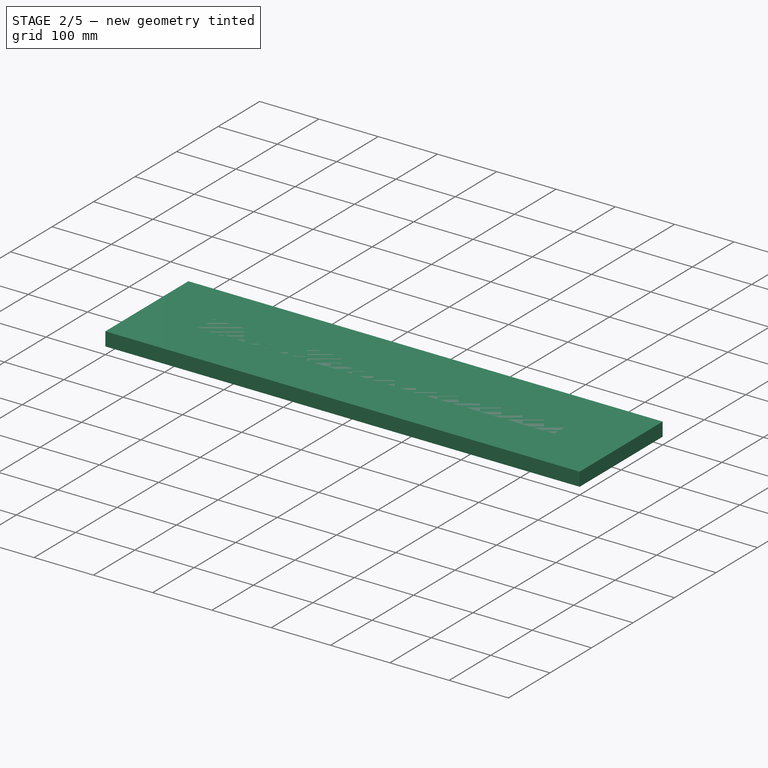
[diagram: stage 2 of 5 — iso view after this stage's code; geometry added in this stage tinted green]
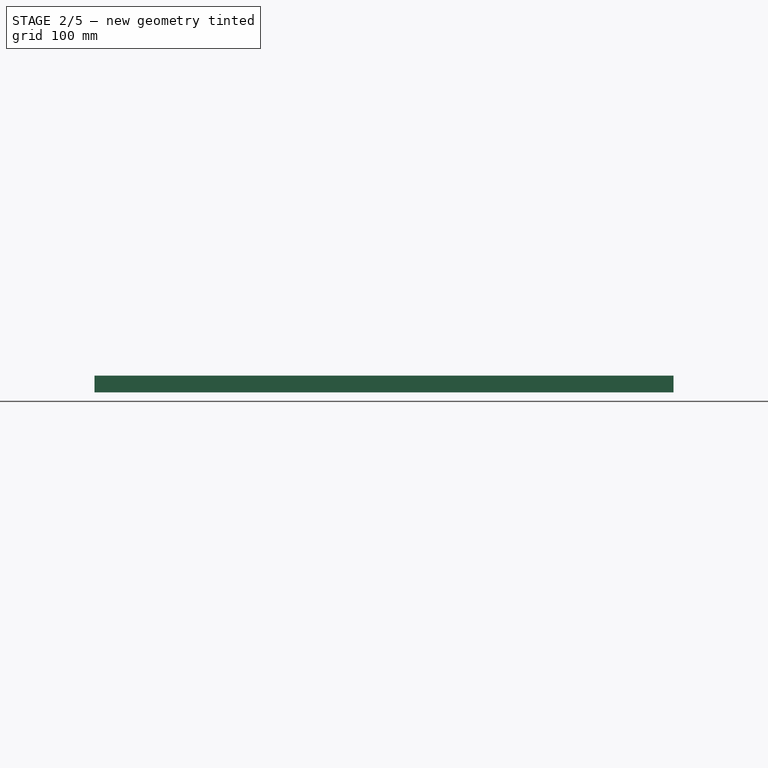
[diagram: stage 2 of 5 — front view after this stage's code; geometry added in this stage tinted green]
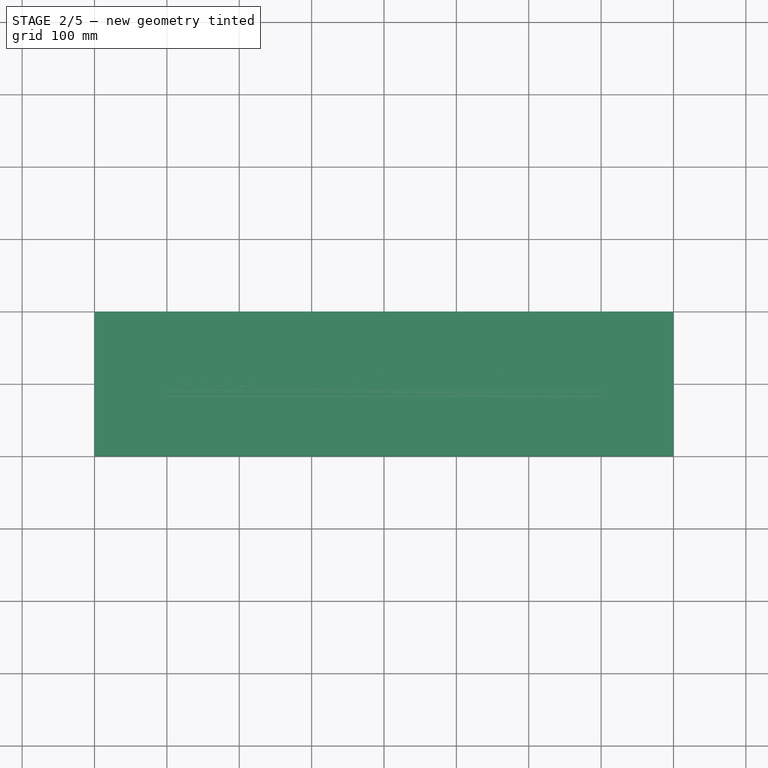
[diagram: stage 2 of 5 — top view after this stage's code; geometry added in this stage tinted green]
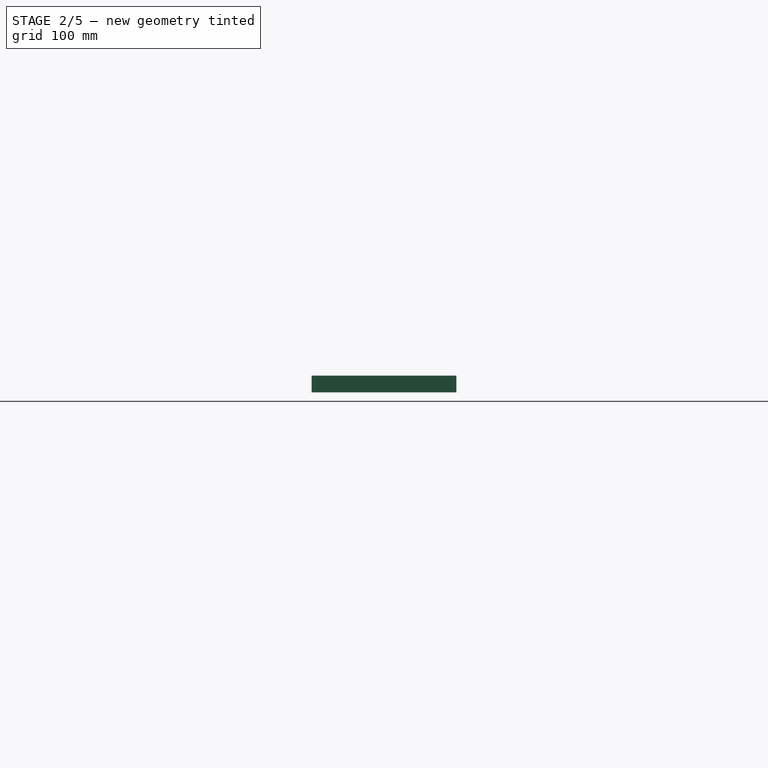
[diagram: stage 2 of 5 — right view after this stage's code; geometry added in this stage tinted green]
FEATURE [PartDesign::Body] Body001  label="p2"
  Group = -> [Sketch001,Pad001,Sketch002,Pocket,Fillet,Sketch014,Pocket006]
  Origin = -> Origin001
  Tip = -> Pocket006
FEATURE [Sketcher::SketchObject] Sketch004
  FullyConstrained = true
  MapMode = 5
  Support = -> [XY_Plane002]
  sketch-geometry (5):
    g0: LineSegment StartX=-325 StartY=-21.5 StartZ=0 EndX=-325 EndY=21.5 EndZ=0
    g1: LineSegment StartX=-325 StartY=21.5 StartZ=0 EndX=325 EndY=21.5 EndZ=0
    g2: LineSegment StartX=325 StartY=21.5 StartZ=0 EndX=325 EndY=-21.5 EndZ=0
    g3: LineSegment StartX=325 StartY=-21.5 StartZ=0 EndX=-325 EndY=-21.5 EndZ=0
    g4: GeomPoint X=0 Y=0 Z=0
  constraints (12):
    c: Coincident(g0,g1)
    c: Coincident(g1,g2)
    c: Coincident(g2,g3)
    c: Coincident(g3,g0)
    c: Horizontal(g1)
    c: Horizontal(g3)
    c: Vertical(g0)
    c: Vertical(g2)
    c: Symmetric(g1,g0,g4)
    c: Coincident(g4,g-1)
    c: DistanceX(g1,g1) = 650
    c: DistanceY(g0,g0) = 43
FEATURE [PartDesign::Pad] Pad002
  Direction = (0,0,1)
  Length = 23
  Length2 = 10
  Profile = -> Sketch004
  ReferenceAxis = -> Sketch004 [N_Axis]
  Type = 0
FEATURE [Sketcher::SketchObject] Sketch005
  ExternalGeometry = -> [Pad002]
  FullyConstrained = true
  MapMode = 5
  Placement = pos=(0,0,23) rot=(0,0,1;0rad)
  Support = -> [Pad002]
  sketch-geometry (1):
    g0: Circle CenterX=-303.5 CenterY=0 CenterZ=0 NormalX=0 NormalY=0 NormalZ=1 AngleXU=0 Radius=3.5
  constraints (3):
    c: PointOnObject(g0,g-1)
    c: DistanceX(g-3,g0) = 21.5
    c: Diameter(g0) = 7
FEATURE [PartDesign::Pocket] Pocket002
  BaseFeature = -> Pad002
  Direction = (0,0,-1)
  Length = 5
  Length2 = 5
  Profile = -> Sketch005
  ReferenceAxis = -> Sketch005 [N_Axis]
  Type = 1
FEATURE [PartDesign::Fillet] Fillet002
  Base = -> Pocket002 [Edge5,Edge1]
  BaseFeature = -> Pocket002
  Radius = 21.5
  SupportTransform = false
  UseAllEdges = false
FEATURE [PartDesign::Body] Body002  label="p3"
  Group = -> [Sketch004,Pad002,Sketch005,Pocket002,Fillet002]
  Origin = -> Origin002
  Tip = -> Fillet002
FEATURE [Sketcher::SketchObject] Sketch010
  FullyConstrained = true
  MapMode = 5
  Support = -> [XY_Plane004]
  sketch-geometry (5):
    g0: LineSegment StartX=-400 StartY=100 StartZ=0 EndX=-400 EndY=-100 EndZ=0
    g1: LineSegment StartX=-400 StartY=-100 StartZ=0 EndX=400 EndY=-100 EndZ=0
    g2: LineSegment StartX=400 StartY=-100 StartZ=0 EndX=400 EndY=100 EndZ=0
    g3: LineSegment StartX=400 StartY=100 StartZ=0 EndX=-400 EndY=100 EndZ=0
    g4: GeomPoint X=0 Y=0 Z=0
  constraints (12):
    c: Coincident(g0,g1)
    c: Coincident(g1,g2)
    c: Coincident(g2,g3)
    c: Coincident(g3,g0)
    c: Horizontal(g1)
    c: Horizontal(g3)
    c: Vertical(g0)
    c: Vertical(g2)
    c: Symmetric(g1,g0,g4)
    c: Coincident(g4,g-1)
    c: DistanceX(g3,g3) = 800
    c: DistanceY(g0,g0) = 200
FEATURE [PartDesign::Pad] Pad004
  Direction = (0,0,1)
  Length = 23
  Length2 = 10
  Profile = -> Sketch010
  ReferenceAxis = -> Sketch010 [N_Axis]
  Type = 0
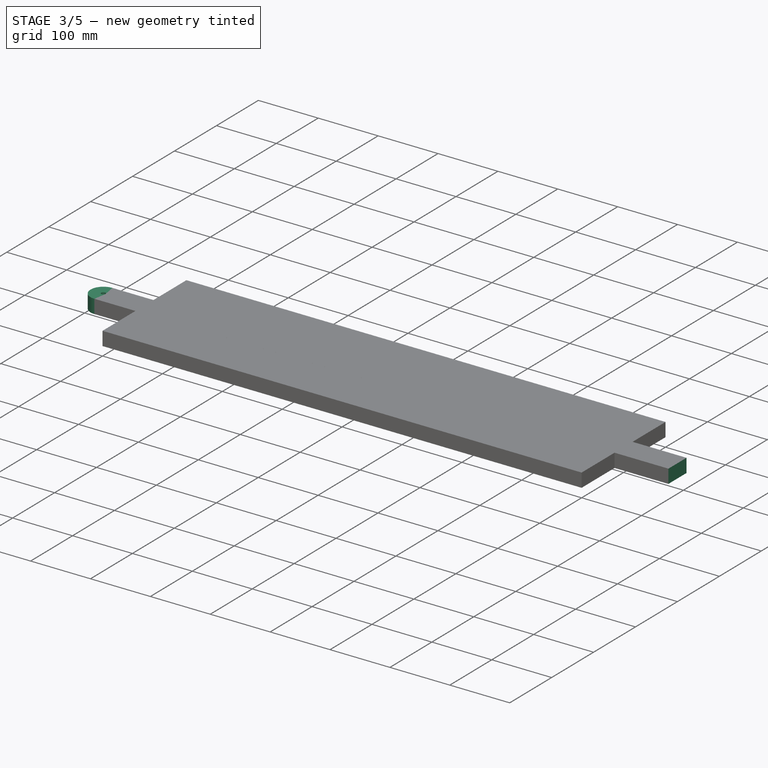
[diagram: stage 3 of 5 — iso view after this stage's code; geometry added in this stage tinted green]
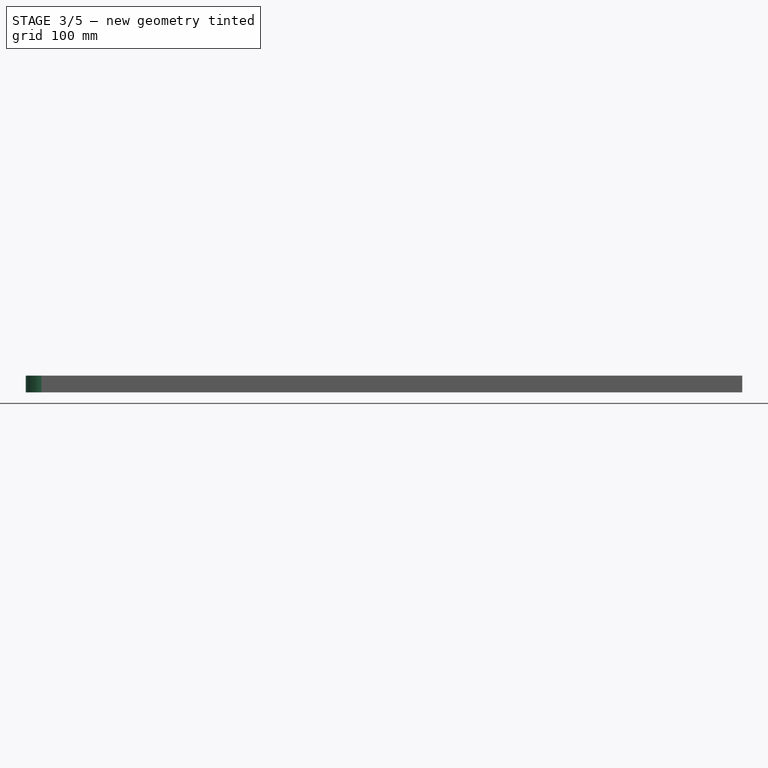
[diagram: stage 3 of 5 — front view after this stage's code; geometry added in this stage tinted green]
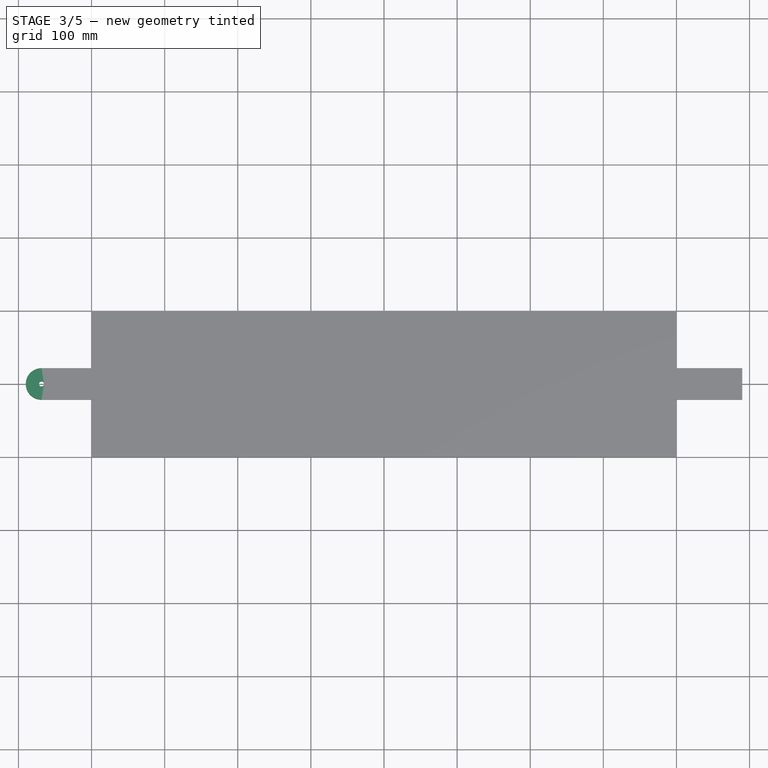
[diagram: stage 3 of 5 — top view after this stage's code; geometry added in this stage tinted green]
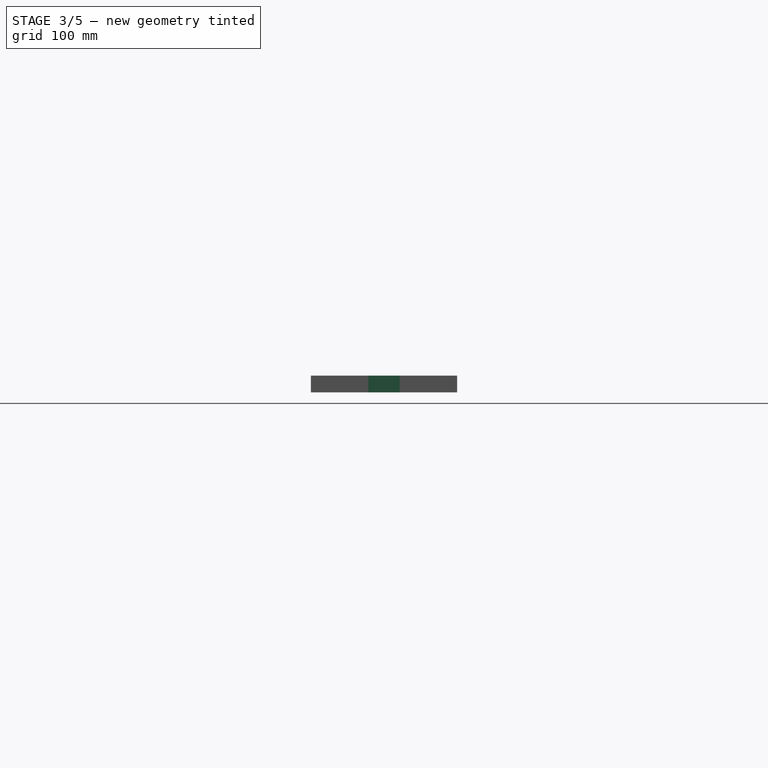
[diagram: stage 3 of 5 — right view after this stage's code; geometry added in this stage tinted green]
FEATURE [PartDesign::Body] Body003  label="p4"
  Group = -> [Sketch006,Pad003,Fillet003]
  Origin = -> Origin003
  Tip = -> Fillet003
FEATURE [Sketcher::SketchObject] Sketch001
  FullyConstrained = true
  MapMode = 5
  Support = -> [XY_Plane001]
  sketch-geometry (5):
    g0: LineSegment StartX=-490 StartY=21.5 StartZ=0 EndX=-490 EndY=-21.5 EndZ=0
    g1: LineSegment StartX=-490 StartY=-21.5 StartZ=0 EndX=490 EndY=-21.5 EndZ=0
    g2: LineSegment StartX=490 StartY=-21.5 StartZ=0 EndX=490 EndY=21.5 EndZ=0
    g3: LineSegment StartX=490 StartY=21.5 StartZ=0 EndX=-490 EndY=21.5 EndZ=0
    g4: GeomPoint X=0 Y=0 Z=0
  constraints (12):
    c: Coincident(g0,g1)
    c: Coincident(g1,g2)
    c: Coincident(g2,g3)
    c: Coincident(g3,g0)
    c: Horizontal(g1)
    c: Horizontal(g3)
    c: Vertical(g0)
    c: Vertical(g2)
    c: Symmetric(g1,g0,g4)
    c: Coincident(g4,g-1)
    c: DistanceY(g0,g0) = 43
    c: DistanceX(g3,g3) = 980
FEATURE [PartDesign::Pad] Pad001
  Direction = (0,0,1)
  Length = 23
  Length2 = 10
  Profile = -> Sketch001
  ReferenceAxis = -> Sketch001 [N_Axis]
  Type = 0
FEATURE [Sketcher::SketchObject] Sketch002
  ExternalGeometry = -> [Pad001]
  FullyConstrained = true
  MapMode = 5
  Placement = pos=(0,0,23) rot=(0,0,1;0rad)
  Support = -> [Pad001]
  sketch-geometry (2):
    g0: Circle CenterX=0 CenterY=0 CenterZ=0 NormalX=0 NormalY=0 NormalZ=1 AngleXU=0 Radius=3.5
    g1: Circle CenterX=-468.5 CenterY=0 CenterZ=0 NormalX=0 NormalY=0 NormalZ=1 AngleXU=0 Radius=3.5
  constraints (5):
    c: Coincident(g0,g-1)
    c: Diameter(g0) = 7
    c: PointOnObject(g1,g-1)
    c: Diameter(g1) = 7
    c: DistanceX(g-3,g1) = 21.5
FEATURE [PartDesign::Pocket] Pocket
  BaseFeature = -> Pad001
  Direction = (0,0,-1)
  Length = 5
  Length2 = 5
  Profile = -> Sketch002
  ReferenceAxis = -> Sketch002 [N_Axis]
  Type = 1
FEATURE [PartDesign::Fillet] Fillet
  Base = -> Pocket [Edge1,Edge2]
  BaseFeature = -> Pocket
  Radius = 21.49
  SupportTransform = false
  UseAllEdges = false
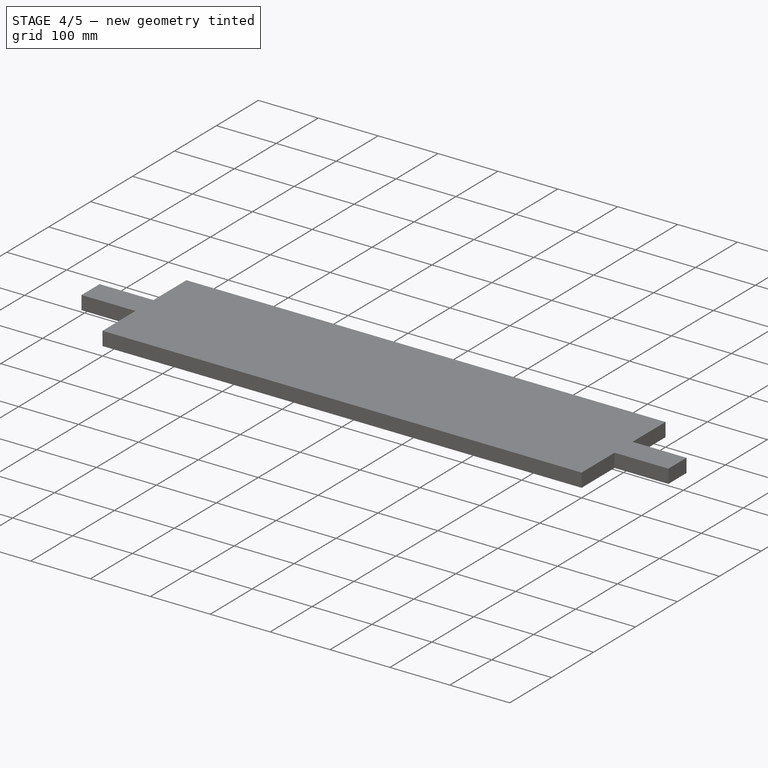
[diagram: stage 4 of 5 — iso view after this stage's code; geometry added in this stage tinted green]
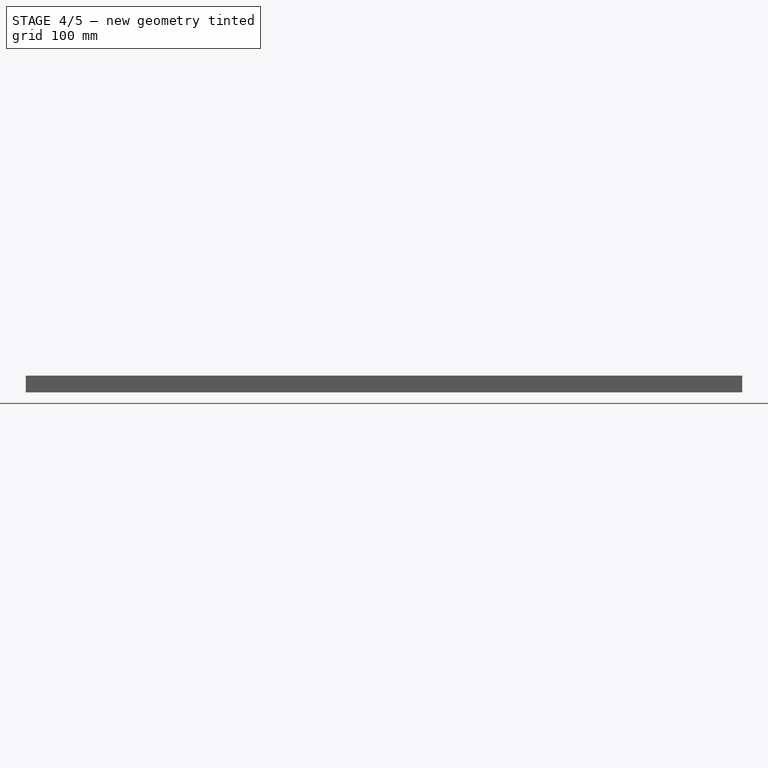
[diagram: stage 4 of 5 — front view after this stage's code; geometry added in this stage tinted green]
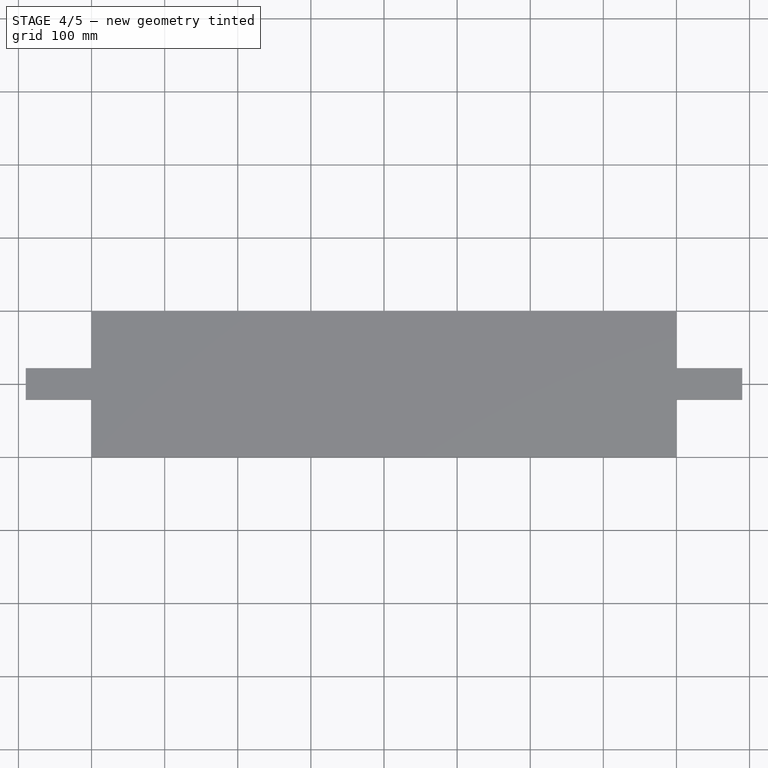
[diagram: stage 4 of 5 — top view after this stage's code; geometry added in this stage tinted green]
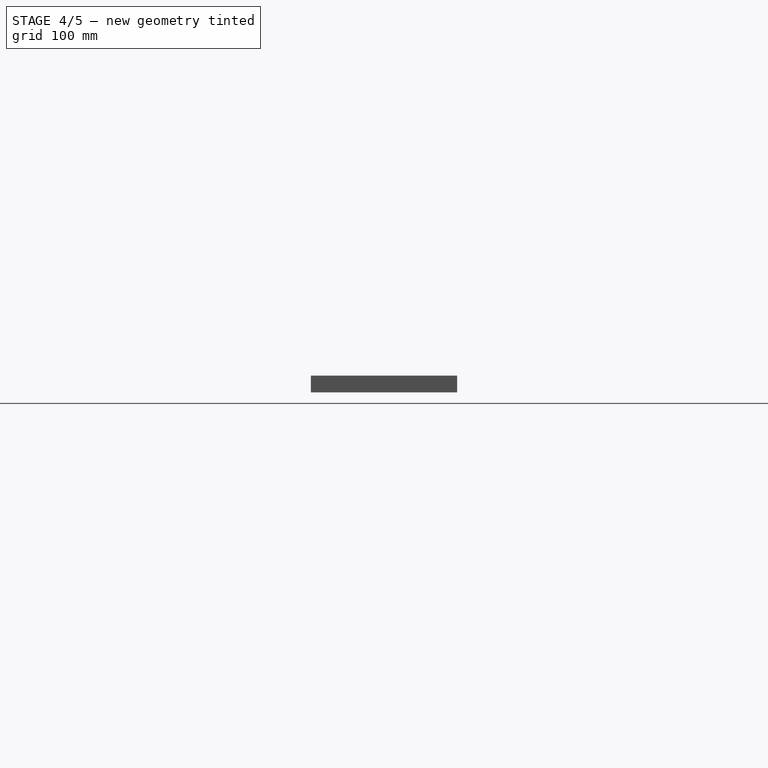
[diagram: stage 4 of 5 — right view after this stage's code; geometry added in this stage tinted green]
FEATURE [App::Link] Link  label="pe1.1"
  LinkPlacement = pos=(-10.7015,26,-365.734) rot=(-0.321648,0.669531,0.669531;2.5192rad)
  LinkedObject = -> Body
  Placement = pos=(-10.7015,26,-365.734) rot=(-0.321648,0.669531,0.669531;2.5192rad)
FEATURE [App::Link] Link001  label="pe1.2"
  LinkPlacement = pos=(-10.7015,554,-365.734) rot=(0.321648,-0.669531,-0.669531;3.76399rad)
  LinkedObject = -> Body
  Placement = pos=(-10.7015,554,-365.734) rot=(0.321648,-0.669531,-0.669531;3.76399rad)
FEATURE [App::Link] Link002  label="trave1.1"
  LinkPlacement = pos=(-187.483,301.5,-568.151) rot=(0.669531,-0.669531,0.321648;3.76399rad)
  LinkedObject = -> Body003
  Placement = pos=(-187.483,301.5,-568.151) rot=(0.669531,-0.669531,0.321648;3.76399rad)
FEATURE [App::Link] Link003  label="trave1.2"
  LinkPlacement = pos=(284.825,301.5,-14.9936) rot=(-0.397373,-0.397373,0.827157;1.75943rad)
  LinkedObject = -> Body003
  Placement = pos=(284.825,301.5,-14.9936) rot=(-0.397373,-0.397373,0.827157;1.75943rad)
FEATURE [App::Link] Link004  label="pe2.1"
  LinkPlacement = pos=(-10.7015,24.5,-365.734) rot=(0.827157,0.397373,-0.397373;1.75943rad)
  LinkedObject = -> Body001
  Placement = pos=(-10.7015,24.5,-365.734) rot=(0.827157,0.397373,-0.397373;1.75943rad)
FEATURE [App::Link] Link005  label="pe2.2"
  LinkPlacement = pos=(-10.7015,601.5,-365.734) rot=(0.827157,0.397373,-0.397373;1.75943rad)
  LinkedObject = -> Body001
  Placement = pos=(-10.7015,601.5,-365.734) rot=(0.827157,0.397373,-0.397373;1.75943rad)
FEATURE [App::Link] Link006  label="base1"
  LinkPlacement = pos=(0,0,0) rot=(1,0,0;1.5708rad)
  LinkedObject = -> Body002
  Placement = pos=(0,0,0) rot=(1,0,0;1.5708rad)
FEATURE [App::Link] Link007  label="base2"
  LinkPlacement = pos=(-8.512e-13,626,2.52819e-10) rot=(-1,0,0;4.71239rad)
  LinkedObject = -> Body002
  Placement = pos=(-8.512e-13,626,2.52819e-10) rot=(-1,0,0;4.71239rad)
FEATURE [App::Link] Link008  label="tábua1"
  LinkPlacement = pos=(100,301.5,44.5) rot=(0.707107,0.707107,0;3.14159rad)
  LinkedObject = -> Body004
  Placement = pos=(100,301.5,44.5) rot=(0.707107,0.707107,0;3.14159rad)
FEATURE [App::Link] Link009  label="tábua2"
  LinkPlacement = pos=(-100,301.5,44.5) rot=(0.707107,0.707107,0;3.14159rad)
  LinkedObject = -> Body004
  Placement = pos=(-100,301.5,44.5) rot=(0.707107,0.707107,0;3.14159rad)
FEATURE [App::Link] Link010  label="tábua3"
  LinkPlacement = pos=(-300,301.5,44.5) rot=(0.707107,0.707107,0;3.14159rad)
  LinkedObject = -> Body004
  Placement = pos=(-300,301.5,44.5) rot=(0.707107,0.707107,0;3.14159rad)
FEATURE [App::Link] Link011  label="tábua4"
  LinkPlacement = pos=(300,301.5,44.5) rot=(0.707107,0.707107,0;3.14159rad)
  LinkedObject = -> Body004
  Placement = pos=(300,301.5,44.5) rot=(0.707107,0.707107,0;3.14159rad)
FEATURE [App::Link] Link012  label="trave2"
  LinkPlacement = pos=(173.887,301.5,-561.901) rot=(-0.397373,0.397373,-0.827157;1.75943rad)
  LinkedObject = -> Body005
  Placement = pos=(173.887,301.5,-561.901) rot=(-0.397373,0.397373,-0.827157;1.75943rad)
FEATURE [App::Link] Link013  label="suporte"
  LinkPlacement = pos=(321.387,301.5,1.25144e-10) rot=(0.57735,0.57735,-0.57735;4.18879rad)
  LinkedObject = -> Body006
  Placement = pos=(321.387,301.5,1.25144e-10) rot=(0.57735,0.57735,-0.57735;4.18879rad)
FEATURE [Part::FeaturePython] Parts  # WARN: FeaturePython — macro-defined, semantics opaque (R4)
  Group = -> [Link,Link001,Link002,Link003,Link004,Link005,Link006,Link007,Link008,Link009,Link010,Link011,Link012,Link013]
  GroupMode = 0
FEATURE [Sketcher::SketchObject] Sketch
  FullyConstrained = true
  MapMode = 5
  Support = -> [XY_Plane]
  sketch-geometry (5):
    g0: LineSegment StartX=490 StartY=-21.5 StartZ=0 EndX=490 EndY=21.5 EndZ=0
    g1: LineSegment StartX=490 StartY=21.5 StartZ=0 EndX=-490 EndY=21.5 EndZ=0
    g2: LineSegment StartX=-490 StartY=21.5 StartZ=0 EndX=-490 EndY=-21.5 EndZ=0
    g3: LineSegment StartX=-490 StartY=-21.5 StartZ=0 EndX=490 EndY=-21.5 EndZ=0
    g4: GeomPoint X=0 Y=0 Z=0
  constraints (12):
    c: Coincident(g0,g1)
    c: Coincident(g1,g2)
    c: Coincident(g2,g3)
    c: Coincident(g3,g0)
    c: Horizontal(g1)
    c: Horizontal(g3)
    c: Vertical(g0)
    c: Vertical(g2)
    c: Symmetric(g1,g0,g4)
    c: Coincident(g4,g-1)
    c: DistanceY(g2,g2) = 43
    c: DistanceX(g1,g1) = 980
FEATURE [PartDesign::Pad] Pad
  Direction = (0,0,1)
  Length = 23
  Length2 = 10
  Profile = -> Sketch
  ReferenceAxis = -> Sketch [N_Axis]
  Type = 0
FEATURE [PartDesign::Body] Body  label="p1"
  Group = -> [Sketch,Pad,Sketch003,Pocket001,Fillet001,Sketch015,Pocket007]
  Origin = -> Origin
  Tip = -> Pocket007
FEATURE [Sketcher::SketchObject] Sketch006
  FullyConstrained = true
  MapMode = 5
  Support = -> [XY_Plane003]
  sketch-geometry (5):
    g0: LineSegment StartX=-252.5 StartY=21.5 StartZ=0 EndX=-252.5 EndY=-21.5 EndZ=0
    g1: LineSegment StartX=-252.5 StartY=-21.5 StartZ=0 EndX=252.5 EndY=-21.5 EndZ=0
    g2: LineSegment StartX=252.5 StartY=-21.5 StartZ=0 EndX=252.5 EndY=21.5 EndZ=0
    g3: LineSegment StartX=252.5 StartY=21.5 StartZ=0 EndX=-252.5 EndY=21.5 EndZ=0
    g4: GeomPoint X=0 Y=0 Z=0
  constraints (12):
    c: Coincident(g0,g1)
    c: Coincident(g1,g2)
    c: Coincident(g2,g3)
    c: Coincident(g3,g0)
    c: Horizontal(g1)
    c: Horizontal(g3)
    c: Vertical(g0)
    c: Vertical(g2)
    c: Symmetric(g1,g0,g4)
    c: Coincident(g4,g-1)
    c: DistanceX(g3,g3) = 505
    c: DistanceY(g0,g0) = 43
FEATURE [PartDesign::Pad] Pad003
  Direction = (0,0,1)
  Length = 23
  Length2 = 10
  Profile = -> Sketch006
  ReferenceAxis = -> Sketch006 [N_Axis]
  Type = 0
FEATURE [PartDesign::Fillet] Fillet003
  Base = -> Pad003 [Edge7,Edge6,Edge12,Edge11]
  BaseFeature = -> Pad003
  Radius = 3
  SupportTransform = false
  UseAllEdges = false
FEATURE [Sketcher::SketchObject] Sketch014
  ExternalGeometry = -> [Fillet]
  FullyConstrained = true
  MapMode = 5
  Placement = pos=(0,0,23) rot=(0,0,1;0rad)
  Support = -> [Fillet]
  sketch-geometry (3):
    g0: LineSegment StartX=490 StartY=21.5 StartZ=0 EndX=455.575 EndY=-21.5 EndZ=0
    g1: LineSegment StartX=455.575 StartY=-21.5 StartZ=0 EndX=490 EndY=-21.5 EndZ=0
    g2: LineSegment StartX=490 StartY=-21.5 StartZ=0 EndX=490 EndY=21.5 EndZ=0
  constraints (7):
    c: Coincident(g-3,g0)
    c: PointOnObject(g0,g-4)
    c: Coincident(g0,g1)
    c: Coincident(g1,g-4)
    c: Coincident(g1,g2)
    c: Coincident(g2,g0)
    c: Angle(g0,g2) = 0.675093
FEATURE [PartDesign::Pocket] Pocket006
  BaseFeature = -> Fillet
  Direction = (0,0,-1)
  Length = 5
  Length2 = 5
  Profile = -> Sketch014
  ReferenceAxis = -> Sketch014 [N_Axis]
  Type = 1
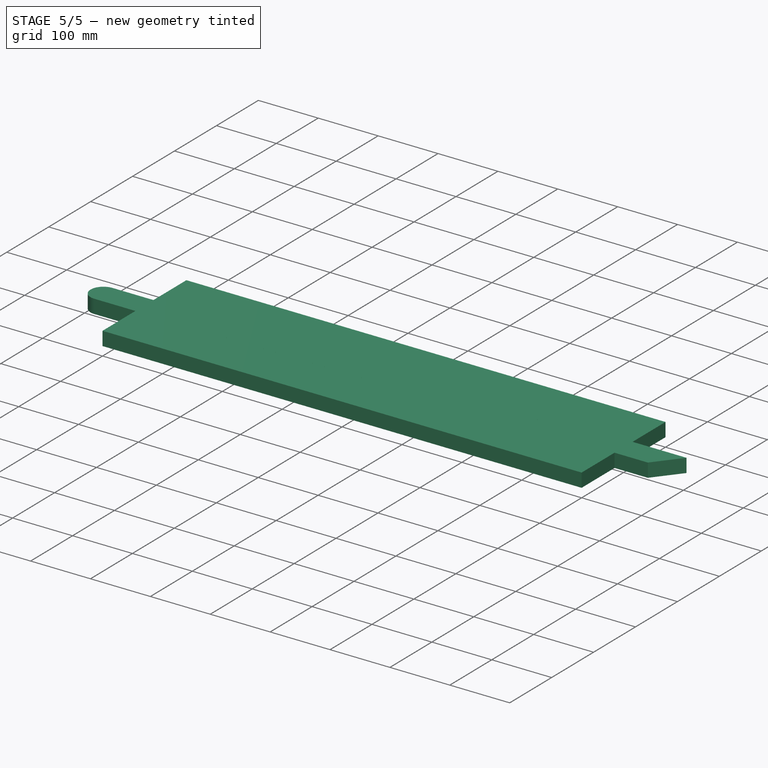
[diagram: stage 5 of 5 — iso view after this stage's code; geometry added in this stage tinted green]
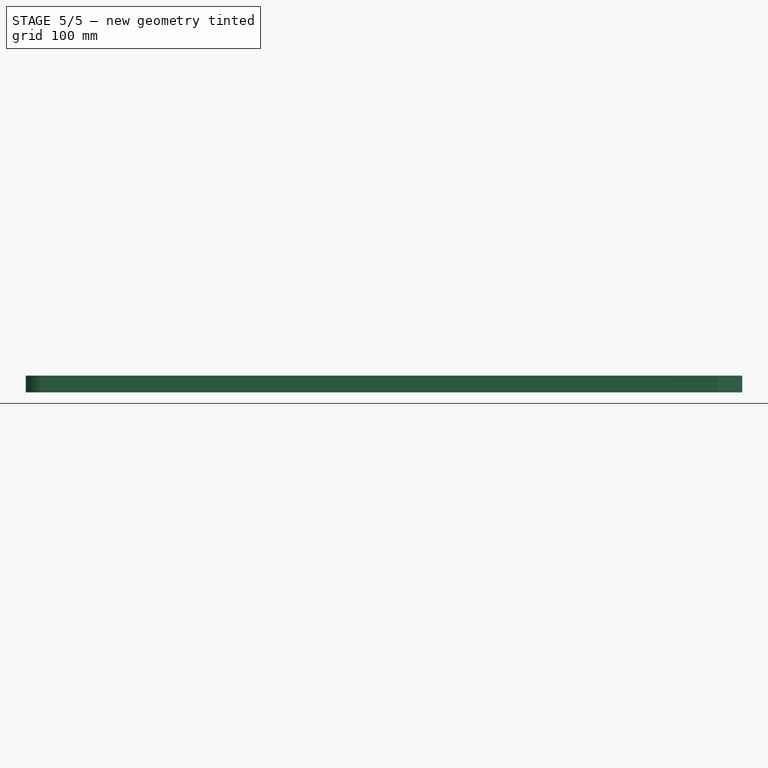
[diagram: stage 5 of 5 — front view after this stage's code; geometry added in this stage tinted green]
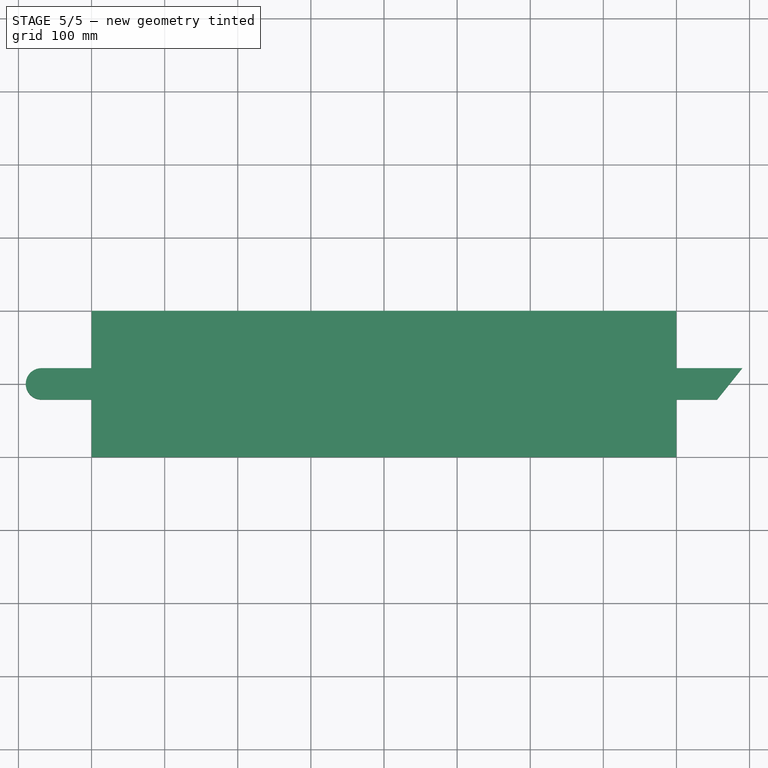
[diagram: stage 5 of 5 — top view after this stage's code; geometry added in this stage tinted green]
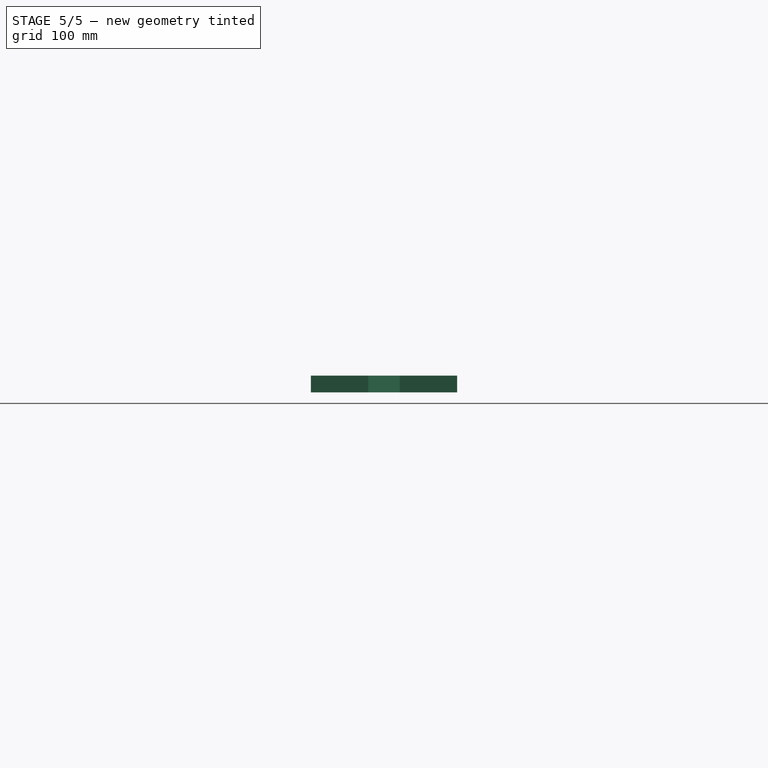
[diagram: stage 5 of 5 — right view after this stage's code; geometry added in this stage tinted green]
FEATURE [Sketcher::SketchObject] Sketch003
  FullyConstrained = true
  MapMode = 5
  Placement = pos=(0,0,23) rot=(0,0,1;0rad)
  Support = -> [Pad]
  sketch-geometry (1):
    g0: Circle CenterX=0 CenterY=0 CenterZ=0 NormalX=0 NormalY=0 NormalZ=1 AngleXU=0 Radius=3.5
  constraints (2):
    c: Coincident(g0,g-1)
    c: Diameter(g0) = 7
FEATURE [PartDesign::Pocket] Pocket001
  BaseFeature = -> Pad
  Direction = (0,0,-1)
  Length = 5
  Length2 = 5
  Profile = -> Sketch003
  ReferenceAxis = -> Sketch003 [N_Axis]
  Type = 1
FEATURE [PartDesign::Fillet] Fillet001
  Base = -> Pocket001 [Edge5,Edge8]
  BaseFeature = -> Pocket001
  Radius = 21.49
  SupportTransform = false
  UseAllEdges = false
FEATURE [Sketcher::SketchObject] Sketch015
  FullyConstrained = false
  MapMode = 5
  Placement = pos=(0,0,23) rot=(0,0,1;0rad)
  sketch-geometry (3):
    g0: LineSegment StartX=490 StartY=21.5 StartZ=0 EndX=455.575 EndY=-21.5 EndZ=0
    g1: LineSegment StartX=455.575 StartY=-21.5 StartZ=0 EndX=490 EndY=-21.5 EndZ=0
    g2: LineSegment StartX=490 StartY=-21.5 StartZ=0 EndX=490 EndY=21.5 EndZ=0
  constraints (4):
    c: Coincident(g0,g1)
    c: Coincident(g1,g2)
    c: Coincident(g2,g0)
    c: Angle(g0,g2) = 0.675093
FEATURE [PartDesign::Pocket] Pocket007
  BaseFeature = -> Fillet001
  Direction = (0,0,-1)
  Length = 5
  Length2 = 5
  Profile = -> Sketch015
  ReferenceAxis = -> Sketch015 [N_Axis]
  Type = 1
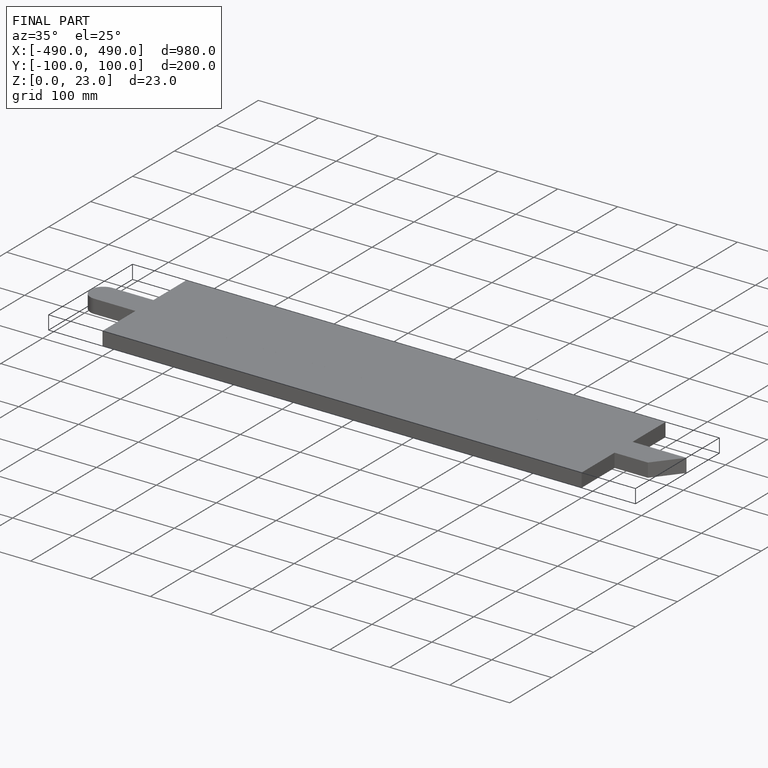
[diagram: finished part — iso view with bounding-box wireframe]
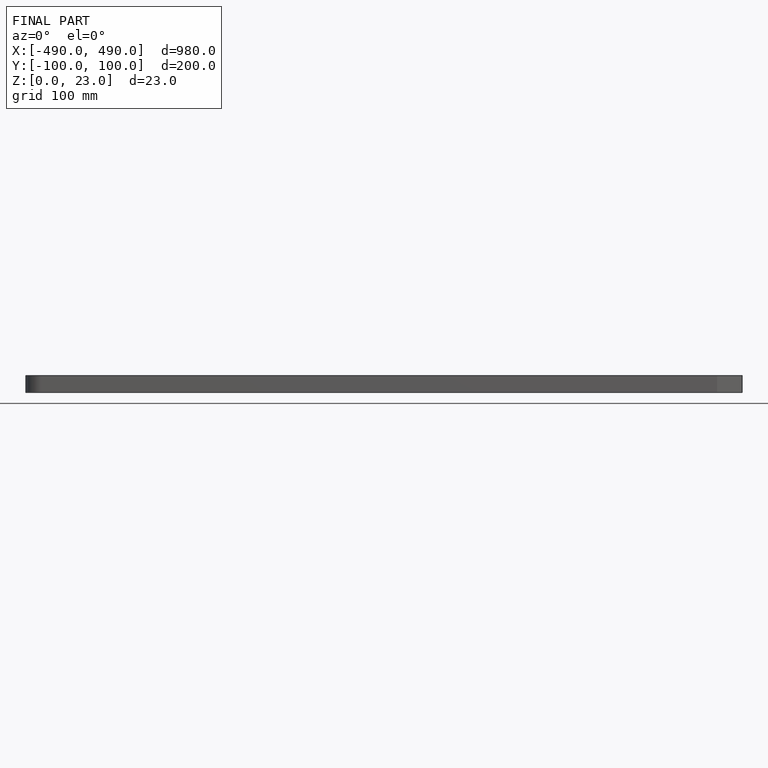
[diagram: finished part — front view with bounding-box wireframe]
